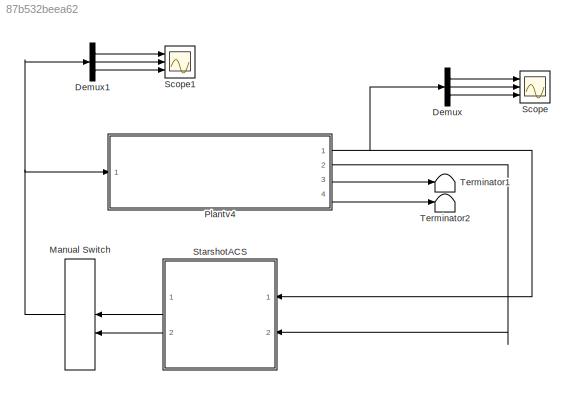
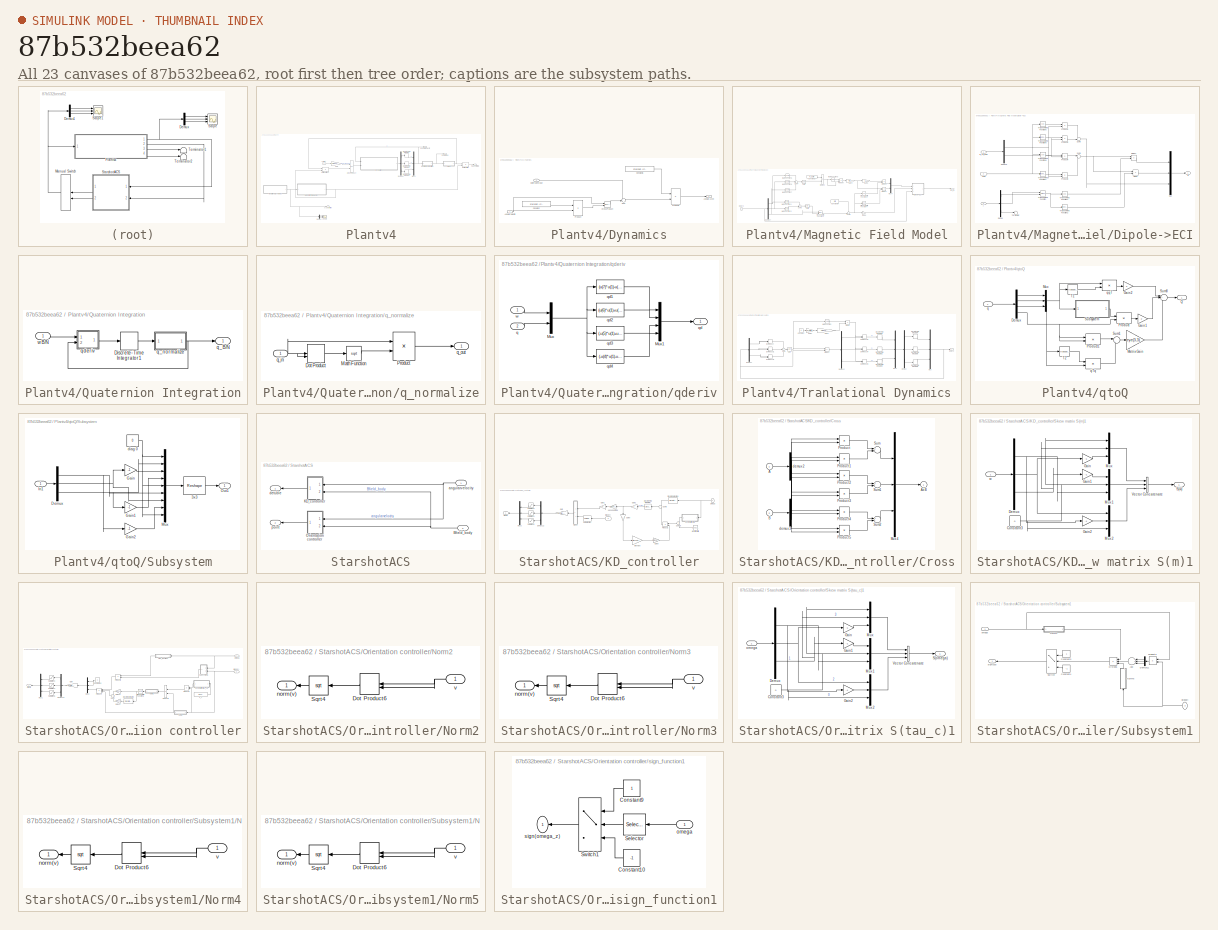
[diagram: thumbnail index - all 23 canvases of the model, root first then tree order]
MODEL slx_87b532beea62
KIND model
CONFIG AbsTol = auto
CONFIG EnableMultiTasking = off
CONFIG FixedStep = auto
CONFIG MaxStep = 4.0
CONFIG MinStep = .001
CONFIG RelTol = 1e-6
CONFIG SampleTimeConstraint = Unconstrained
CONFIG Solver = ode45
CONFIG SolverName = ode45
CONFIG StartTime = 0.0
CONFIG StopTime = 10000
BLOCK [Demux] Demux
  DisplayOption = bar
  Outputs = 3
  Ports = [1, 3]
BLOCK [Demux] Demux1
  DisplayOption = bar
  Outputs = 3
  Ports = [1, 3]
BLOCK [ManualSwitch] Manual Switch
BLOCK [SubSystem] Plantv4
  Ports = [1, 4]
  RequestExecContextInheritance = off
  TreatAsAtomicUnit = on
  Variant = off
BLOCK [Reference] Plantv4/Cross Product  REF=vrlib/Utilities/Cross Product
  Ports = [2, 1]
  SourceBlock = vrlib/Utilities/Cross Product
  SourceProductBaseCode = VR
  SourceProductName = Simulink 3D Animation
  SourceType = Cross Product
BLOCK [Demux] Plantv4/Demux
  DisplayOption = bar
  Outputs = 3
  Ports = [1, 3]
BLOCK [Demux] Plantv4/Demux4
  DisplayOption = bar
  Outputs = 3
  Ports = [1, 3]
BLOCK [DiscreteIntegrator] Plantv4/Discrete-Time Integrator
  ICPrevOutput = DiscIntNeverNeededParam
  ICPrevScaledInput = DiscIntNeverNeededParam
  InitialCondition = starshot.IC.w(1)
  InitialConditionSetting = State (most efficient)
  Ports = [1, 1]
  SampleTime = -1
BLOCK [DiscreteIntegrator] Plantv4/Discrete-Time Integrator1
  ICPrevOutput = DiscIntNeverNeededParam
  ICPrevScaledInput = DiscIntNeverNeededParam
  InitialCondition = starshot.IC.w(2)
  InitialConditionSetting = State (most efficient)
  Ports = [1, 1]
  SampleTime = -1
BLOCK [DiscreteIntegrator] Plantv4/Discrete-Time Integrator2
  ICPrevOutput = DiscIntNeverNeededParam
  ICPrevScaledInput = DiscIntNeverNeededParam
  InitialCondition = starshot.IC.w(3)
  InitialConditionSetting = State (most efficient)
  Ports = [1, 1]
  SampleTime = -1
BLOCK [SubSystem] Plantv4/Dynamics
  Ports = [2, 1]
  RequestExecContextInheritance = off
  TreatAsAtomicUnit = on
  Variant = off
BLOCK [Outport] Plantv4/Dynamics/Angular Accel
  IconDisplay = Port number
BLOCK [Inport] Plantv4/Dynamics/Angular Velocity
  IconDisplay = Port number
BLOCK [Constant] Plantv4/Dynamics/Constant
  Value = starshot.IC.massproperties.I
BLOCK [Constant] Plantv4/Dynamics/Constant1
  Value = starshot.IC.massproperties.Iinv
BLOCK [Reference] Plantv4/Dynamics/Cross Product  REF=vrlib/Utilities/Cross Product
  Ports = [2, 1]
  SourceBlock = vrlib/Utilities/Cross Product
  SourceProductBaseCode = VR
  SourceProductName = Simulink 3D Animation
  SourceType = Cross Product
BLOCK [Inport] Plantv4/Dynamics/External Torque
  IconDisplay = Port number
  Port = 2
BLOCK [Product] Plantv4/Dynamics/Product
  InputSameDT = off
  Multiplication = Matrix(*)
  OutDataTypeStr = Inherit: Inherit via internal rule
  Ports = [2, 1]
  RndMeth = Floor
  SaturateOnIntegerOverflow = off
BLOCK [Product] Plantv4/Dynamics/Product1
  InputSameDT = off
  Multiplication = Matrix(*)
  OutDataTypeStr = Inherit: Inherit via internal rule
  Ports = [2, 1]
  RndMeth = Floor
  SaturateOnIntegerOverflow = off
BLOCK [Sum] Plantv4/Dynamics/Sum
  IconShape = round
  InputSameDT = off
  Inputs = +-
  OutDataTypeStr = Inherit: Inherit via internal rule
  Ports = [2, 1]
  SaturateOnIntegerOverflow = off
BLOCK [Gain] Plantv4/Gain
  Gain = starshot.magnetorq.A*starshot.magnetorq.n
  OutDataTypeStr = Inherit: Inherit via internal rule
  ParamDataTypeStr = Inherit: Inherit via internal rule
  SaturateOnIntegerOverflow = off
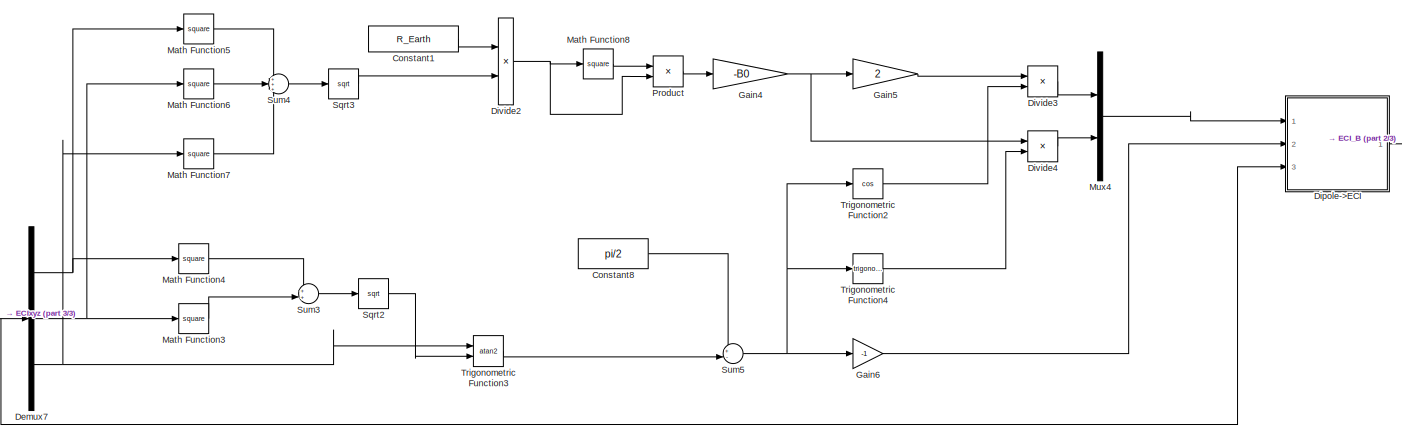
[diagram: Plantv4/Magnetic Field Model - part 1/3, most of the canvas]
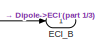
[diagram: Plantv4/Magnetic Field Model - part 2/3, middle right region]
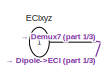
[diagram: Plantv4/Magnetic Field Model - part 3/3, bottom left region]
BLOCK [SubSystem] Plantv4/Magnetic Field Model
  Ports = [1, 1]
  RequestExecContextInheritance = off
  TreatAsAtomicUnit = on
  Variant = off
BLOCK [Constant] Plantv4/Magnetic Field Model/Constant1
  Value = R_Earth
BLOCK [Constant] Plantv4/Magnetic Field Model/Constant8
  Value = pi/2
BLOCK [Demux] Plantv4/Magnetic Field Model/Demux7
  DisplayOption = bar
  Outputs = 3
  Ports = [1, 3]
BLOCK [SubSystem] Plantv4/Magnetic Field Model/Dipole->ECI
  Ports = [3, 1]
  RequestExecContextInheritance = off
  TreatAsAtomicUnit = on
  Variant = off
BLOCK [Inport] Plantv4/Magnetic Field Model/Dipole->ECI/-theta
  IconDisplay = Port number
  Port = 2
BLOCK [Outport] Plantv4/Magnetic Field Model/Dipole->ECI/B
  IconDisplay = Port number
BLOCK [Inport] Plantv4/Magnetic Field Model/Dipole->ECI/B_r,B_theta
  IconDisplay = Port number
BLOCK [Demux] Plantv4/Magnetic Field Model/Dipole->ECI/Demux
  DisplayOption = bar
  Outputs = 3
  Ports = [1, 3]
BLOCK [Demux] Plantv4/Magnetic Field Model/Dipole->ECI/Demux8
  DisplayOption = bar
  Outputs = 2
  Ports = [1, 2]
BLOCK [Product] Plantv4/Magnetic Field Model/Dipole->ECI/Divide
  InputSameDT = off
  Inputs = **
  OutDataTypeStr = Inherit: Inherit via internal rule
  Ports = [2, 1]
  RndMeth = Floor
  SaturateOnIntegerOverflow = off
BLOCK [Product] Plantv4/Magnetic Field Model/Dipole->ECI/Divide1
  InputSameDT = off
  Inputs = **
  OutDataTypeStr = Inherit: Inherit via internal rule
  Ports = [2, 1]
  RndMeth = Floor
  SaturateOnIntegerOverflow = off
BLOCK [Mux] Plantv4/Magnetic Field Model/Dipole->ECI/Mux
  DisplayOption = bar
  Inputs = 3
  Ports = [3, 1]
BLOCK [Product] Plantv4/Magnetic Field Model/Dipole->ECI/Product1
  InputSameDT = off
  OutDataTypeStr = Inherit: Inherit via internal rule
  Ports = [2, 1]
  RndMeth = Floor
  SaturateOnIntegerOverflow = off
BLOCK [Product] Plantv4/Magnetic Field Model/Dipole->ECI/Product2
  InputSameDT = off
  OutDataTypeStr = Inherit: Inherit via internal rule
  Ports = [2, 1]
  RndMeth = Floor
  SaturateOnIntegerOverflow = off
BLOCK [Product] Plantv4/Magnetic Field Model/Dipole->ECI/Product3
  InputSameDT = off
  OutDataTypeStr = Inherit: Inherit via internal rule
  Ports = [2, 1]
  RndMeth = Floor
  SaturateOnIntegerOverflow = off
BLOCK [Product] Plantv4/Magnetic Field Model/Dipole->ECI/Product4
  InputSameDT = off
  OutDataTypeStr = Inherit: Inherit via internal rule
  Ports = [2, 1]
  RndMeth = Floor
  SaturateOnIntegerOverflow = off
BLOCK [Sum] Plantv4/Magnetic Field Model/Dipole->ECI/Sum5
  IconShape = round
  InputSameDT = off
  Inputs = +-|
  OutDataTypeStr = Inherit: Inherit via internal rule
  Ports = [2, 1]
  SaturateOnIntegerOverflow = off
BLOCK [Sum] Plantv4/Magnetic Field Model/Dipole->ECI/Sum6
  IconShape = round
  InputSameDT = off
  Inputs = |++
  OutDataTypeStr = Inherit: Inherit via internal rule
  Ports = [2, 1]
  SaturateOnIntegerOverflow = off
BLOCK [Terminator] Plantv4/Magnetic Field Model/Dipole->ECI/Terminator
BLOCK [Trigonometry] Plantv4/Magnetic Field Model/Dipole->ECI/Trigonometric Function
  Operator = atan2
  Ports = [2, 1]
BLOCK [Trigonometry] Plantv4/Magnetic Field Model/Dipole->ECI/Trigonometric Function1
  Operator = cos
  Ports = [1, 1]
BLOCK [Trigonometry] Plantv4/Magnetic Field Model/Dipole->ECI/Trigonometric Function2
  Ports = [1, 1]
BLOCK [Trigonometry] Plantv4/Magnetic Field Model/Dipole->ECI/Trigonometric Function5
  Operator = cos
  Ports = [1, 1]
BLOCK [Trigonometry] Plantv4/Magnetic Field Model/Dipole->ECI/Trigonometric Function6
  Ports = [1, 1]
BLOCK [Trigonometry] Plantv4/Magnetic Field Model/Dipole->ECI/Trigonometric Function7
  Ports = [1, 1]
BLOCK [Trigonometry] Plantv4/Magnetic Field Model/Dipole->ECI/Trigonometric Function8
  Operator = cos
  Ports = [1, 1]
BLOCK [Inport] Plantv4/Magnetic Field Model/Dipole->ECI/r
  IconDisplay = Port number
  Port = 3
BLOCK [Product] Plantv4/Magnetic Field Model/Divide2
  InputSameDT = off
  Inputs = */
  OutDataTypeStr = Inherit: Inherit via internal rule
  Ports = [2, 1]
  RndMeth = Floor
  SaturateOnIntegerOverflow = off
BLOCK [Product] Plantv4/Magnetic Field Model/Divide3
  InputSameDT = off
  Inputs = **
  OutDataTypeStr = Inherit: Inherit via internal rule
  Ports = [2, 1]
  RndMeth = Floor
  SaturateOnIntegerOverflow = off
BLOCK [Product] Plantv4/Magnetic Field Model/Divide4
  InputSameDT = off
  Inputs = **
  OutDataTypeStr = Inherit: Inherit via internal rule
  Ports = [2, 1]
  RndMeth = Floor
  SaturateOnIntegerOverflow = off
BLOCK [Outport] Plantv4/Magnetic Field Model/ECI_B
  IconDisplay = Port number
BLOCK [Inport] Plantv4/Magnetic Field Model/ECIxyz
  IconDisplay = Port number
BLOCK [Gain] Plantv4/Magnetic Field Model/Gain4
  Gain = -B0
  OutDataTypeStr = Inherit: Inherit via internal rule
  ParamDataTypeStr = Inherit: Inherit via internal rule
  SaturateOnIntegerOverflow = off
BLOCK [Gain] Plantv4/Magnetic Field Model/Gain5
  Gain = 2
  OutDataTypeStr = Inherit: Inherit via internal rule
  ParamDataTypeStr = Inherit: Inherit via internal rule
  SaturateOnIntegerOverflow = off
BLOCK [Gain] Plantv4/Magnetic Field Model/Gain6
  Gain = -1
  OutDataTypeStr = Inherit: Inherit via internal rule
  ParamDataTypeStr = Inherit: Inherit via internal rule
  SaturateOnIntegerOverflow = off
BLOCK [Math] Plantv4/Magnetic Field Model/Math Function3
  Operator = square
  Ports = [1, 1]
BLOCK [Math] Plantv4/Magnetic Field Model/Math Function4
  Operator = square
  Ports = [1, 1]
BLOCK [Math] Plantv4/Magnetic Field Model/Math Function5
  Operator = square
  Ports = [1, 1]
BLOCK [Math] Plantv4/Magnetic Field Model/Math Function6
  Operator = square
  Ports = [1, 1]
BLOCK [Math] Plantv4/Magnetic Field Model/Math Function7
  Operator = square
  Ports = [1, 1]
BLOCK [Math] Plantv4/Magnetic Field Model/Math Function8
  Operator = square
  Ports = [1, 1]
BLOCK [Mux] Plantv4/Magnetic Field Model/Mux4
  DisplayOption = bar
  Inputs = 2
  Ports = [2, 1]
BLOCK [Product] Plantv4/Magnetic Field Model/Product
  InputSameDT = off
  OutDataTypeStr = Inherit: Inherit via internal rule
  Ports = [2, 1]
  RndMeth = Floor
  SaturateOnIntegerOverflow = off
BLOCK [Sqrt] Plantv4/Magnetic Field Model/Sqrt2
BLOCK [Sqrt] Plantv4/Magnetic Field Model/Sqrt3
BLOCK [Sum] Plantv4/Magnetic Field Model/Sum3
  IconShape = round
  InputSameDT = off
  OutDataTypeStr = Inherit: Inherit via internal rule
  Ports = [2, 1]
  SaturateOnIntegerOverflow = off
BLOCK [Sum] Plantv4/Magnetic Field Model/Sum4
  IconShape = round
  InputSameDT = off
  Inputs = +++
  OutDataTypeStr = Inherit: Inherit via internal rule
  Ports = [3, 1]
  SaturateOnIntegerOverflow = off
BLOCK [Sum] Plantv4/Magnetic Field Model/Sum5
  IconShape = round
  InputSameDT = off
  Inputs = +-|
  OutDataTypeStr = Inherit: Inherit via internal rule
  Ports = [2, 1]
  SaturateOnIntegerOverflow = off
BLOCK [Trigonometry] Plantv4/Magnetic Field Model/Trigonometric Function2
  Operator = cos
  Ports = [1, 1]
BLOCK [Trigonometry] Plantv4/Magnetic Field Model/Trigonometric Function3
  Operator = atan2
  Ports = [2, 1]
BLOCK [Trigonometry] Plantv4/Magnetic Field Model/Trigonometric Function4
  Ports = [1, 1]
BLOCK [Product] Plantv4/Matrix Multiply
  InputSameDT = off
  Multiplication = Matrix(*)
  OutDataTypeStr = Inherit: Inherit via internal rule
  Ports = [2, 1]
  RndMeth = Floor
  SaturateOnIntegerOverflow = off
BLOCK [Product] Plantv4/Matrix Multiply1
  InputSameDT = off
  Multiplication = Matrix(*)
  OutDataTypeStr = Inherit: Inherit via internal rule
  Ports = [2, 1]
  RndMeth = Floor
  SaturateOnIntegerOverflow = off
BLOCK [Mux] Plantv4/Mux3
  DisplayOption = bar
  Inputs = 3
  Ports = [3, 1]
BLOCK [SubSystem] Plantv4/Quaternion Integration
  Ports = [1, 1]
  RequestExecContextInheritance = off
  Variant = off
BLOCK [DiscreteIntegrator] Plantv4/Quaternion Integration/Discrete-Time Integrator1
  ICPrevOutput = DiscIntNeverNeededParam
  ICPrevScaledInput = DiscIntNeverNeededParam
  InitialCondition = q0
  InitialConditionSetting = State (most efficient)
  Ports = [1, 1]
  SampleTime = -1
BLOCK [Outport] Plantv4/Quaternion Integration/q_B//N
  IconDisplay = Port number
BLOCK [SubSystem] Plantv4/Quaternion Integration/q_normalize
  Ports = [1, 1]
  RequestExecContextInheritance = off
  Variant = off
BLOCK [DotProduct] Plantv4/Quaternion Integration/q_normalize/Dot Product
  OutDataTypeStr = Inherit: Inherit via internal rule
BLOCK [Math] Plantv4/Quaternion Integration/q_normalize/Math Function
  Operator = sqrt
  Ports = [1, 1]
BLOCK [Product] Plantv4/Quaternion Integration/q_normalize/Product
  Inputs = */
  Ports = [2, 1]
  RndMeth = Floor
BLOCK [Inport] Plantv4/Quaternion Integration/q_normalize/q_in
  IconDisplay = Port number
  PortDimensions = 4
BLOCK [Outport] Plantv4/Quaternion Integration/q_normalize/q_out
  IconDisplay = Port number
BLOCK [SubSystem] Plantv4/Quaternion Integration/qderiv
  Ports = [2, 1]
  RequestExecContextInheritance = off
  Variant = off
BLOCK [Mux] Plantv4/Quaternion Integration/qderiv/Mux
  DisplayOption = bar
  Inputs = 2
  Ports = [2, 1]
BLOCK [Mux] Plantv4/Quaternion Integration/qderiv/Mux1
  DisplayOption = bar
  Ports = [4, 1]
BLOCK [Inport] Plantv4/Quaternion Integration/qderiv/q
  IconDisplay = Port number
  Port = 2
BLOCK [Outport] Plantv4/Quaternion Integration/qderiv/qd
  IconDisplay = Port number
BLOCK [Fcn] Plantv4/Quaternion Integration/qderiv/qd1
  Expr = (u(7)*u(1)-u(6)*u(2)+u(5)*u(3))/2
BLOCK [Fcn] Plantv4/Quaternion Integration/qderiv/qd2
  Expr = (u(6)*u(1)+u(7)*u(2)-u(4)*u(3))/2
BLOCK [Fcn] Plantv4/Quaternion Integration/qderiv/qd3
  Expr = (-u(5)*u(1)+u(4)*u(2)+u(7)*u(3))/2
BLOCK [Fcn] Plantv4/Quaternion Integration/qderiv/qd4
  Expr = (-u(4)*u(1)-u(5)*u(2)-u(6)*u(3))/2
BLOCK [Inport] Plantv4/Quaternion Integration/qderiv/w
  IconDisplay = Port number
BLOCK [Inport] Plantv4/Quaternion Integration/w B//N
  IconDisplay = Port number
BLOCK [Scope] Plantv4/Scope
  NumInputPorts = 3
  Ports = [3]
  ScopeSpecificationString = Simulink.scopes.TimeScopeBlockCfg('CurrentConfiguration', extmgr.ConfigurationSet(extmgr.Configuration('Core','General UI',true),extmgr.Configuration('Core','Source UI',true),extmgr.Configuration('Sources','WiredSimulink',true,'DataLoggingVariableName','ScopeData1'),extmgr.Configuration('Visuals','Time Domain',true,'SerializedDisplays',{struct('MinYLimReal','6403135.10671','MaxYLimReal','12371784....<+2772ch>
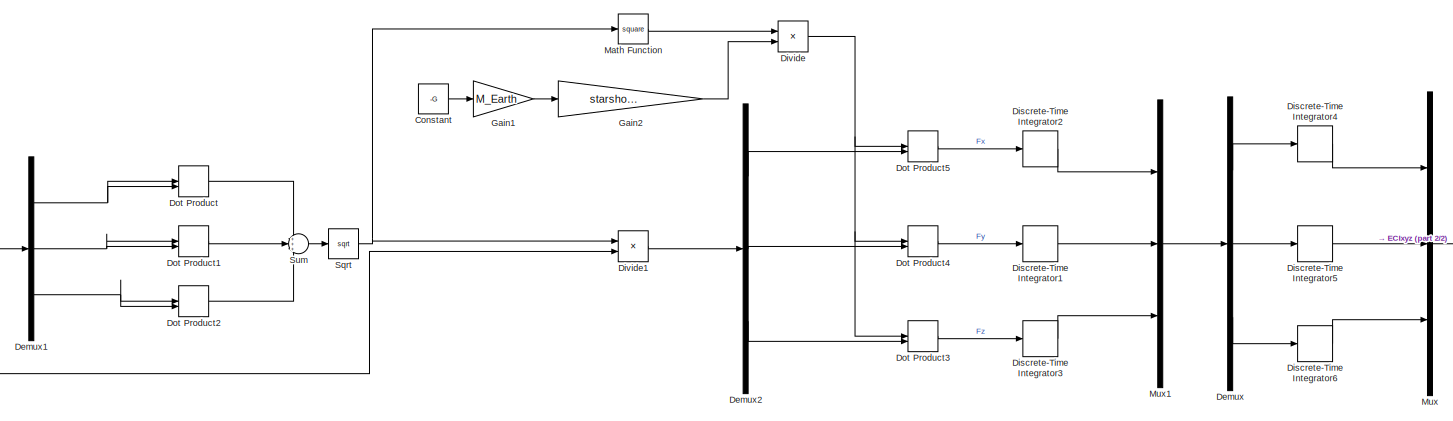
[diagram: Plantv4/Tranlational Dynamics - part 1/2, most of the canvas]
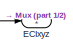
[diagram: Plantv4/Tranlational Dynamics - part 2/2, middle right region]
BLOCK [SubSystem] Plantv4/Tranlational Dynamics
  Ports = [0, 1]
  RequestExecContextInheritance = off
  TreatAsAtomicUnit = on
  Variant = off
BLOCK [Constant] Plantv4/Tranlational Dynamics/Constant
  Value = -G
BLOCK [Demux] Plantv4/Tranlational Dynamics/Demux
  DisplayOption = bar
  Outputs = 3
  Ports = [1, 3]
BLOCK [Demux] Plantv4/Tranlational Dynamics/Demux1
  DisplayOption = bar
  Outputs = 3
  Ports = [1, 3]
BLOCK [Demux] Plantv4/Tranlational Dynamics/Demux2
  DisplayOption = bar
  Outputs = 3
  Ports = [1, 3]
BLOCK [DiscreteIntegrator] Plantv4/Tranlational Dynamics/Discrete-Time Integrator1
  ICPrevOutput = DiscIntNeverNeededParam
  ICPrevScaledInput = DiscIntNeverNeededParam
  InitialCondition = starshot.IC.ydot
  InitialConditionSetting = State (most efficient)
  Ports = [1, 1]
  SampleTime = -1
BLOCK [DiscreteIntegrator] Plantv4/Tranlational Dynamics/Discrete-Time Integrator2
  ICPrevOutput = DiscIntNeverNeededParam
  ICPrevScaledInput = DiscIntNeverNeededParam
  InitialCondition = starshot.IC.xdot
  InitialConditionSetting = State (most efficient)
  Ports = [1, 1]
  SampleTime = -1
BLOCK [DiscreteIntegrator] Plantv4/Tranlational Dynamics/Discrete-Time Integrator3
  ICPrevOutput = DiscIntNeverNeededParam
  ICPrevScaledInput = DiscIntNeverNeededParam
  InitialCondition = starshot.IC.zdot
  InitialConditionSetting = State (most efficient)
  Ports = [1, 1]
  SampleTime = -1
BLOCK [DiscreteIntegrator] Plantv4/Tranlational Dynamics/Discrete-Time Integrator4
  ICPrevOutput = DiscIntNeverNeededParam
  ICPrevScaledInput = DiscIntNeverNeededParam
  InitialCondition = starshot.IC.x
  InitialConditionSetting = State (most efficient)
  Ports = [1, 1]
  SampleTime = -1
BLOCK [DiscreteIntegrator] Plantv4/Tranlational Dynamics/Discrete-Time Integrator5
  ICPrevOutput = DiscIntNeverNeededParam
  ICPrevScaledInput = DiscIntNeverNeededParam
  InitialCondition = starshot.IC.y
  InitialConditionSetting = State (most efficient)
  Ports = [1, 1]
  SampleTime = -1
BLOCK [DiscreteIntegrator] Plantv4/Tranlational Dynamics/Discrete-Time Integrator6
  ICPrevOutput = DiscIntNeverNeededParam
  ICPrevScaledInput = DiscIntNeverNeededParam
  InitialCondition = starshot.IC.z
  InitialConditionSetting = State (most efficient)
  Ports = [1, 1]
  SampleTime = -1
BLOCK [Product] Plantv4/Tranlational Dynamics/Divide
  InputSameDT = off
  Inputs = /*
  OutDataTypeStr = Inherit: Inherit via internal rule
  Ports = [2, 1]
  RndMeth = Floor
  SaturateOnIntegerOverflow = off
BLOCK [Product] Plantv4/Tranlational Dynamics/Divide1
  InputSameDT = off
  Inputs = /*
  OutDataTypeStr = Inherit: Inherit via internal rule
  Ports = [2, 1]
  RndMeth = Floor
  SaturateOnIntegerOverflow = off
BLOCK [DotProduct] Plantv4/Tranlational Dynamics/Dot Product
  OutDataTypeStr = Inherit: Inherit via internal rule
BLOCK [DotProduct] Plantv4/Tranlational Dynamics/Dot Product1
  OutDataTypeStr = Inherit: Inherit via internal rule
BLOCK [DotProduct] Plantv4/Tranlational Dynamics/Dot Product2
  OutDataTypeStr = Inherit: Inherit via internal rule
BLOCK [DotProduct] Plantv4/Tranlational Dynamics/Dot Product3
  OutDataTypeStr = Inherit: Inherit via internal rule
BLOCK [DotProduct] Plantv4/Tranlational Dynamics/Dot Product4
  OutDataTypeStr = Inherit: Inherit via internal rule
BLOCK [DotProduct] Plantv4/Tranlational Dynamics/Dot Product5
  OutDataTypeStr = Inherit: Inherit via internal rule
BLOCK [Outport] Plantv4/Tranlational Dynamics/ECIxyz
  IconDisplay = Port number
BLOCK [Gain] Plantv4/Tranlational Dynamics/Gain1
  Gain = M_Earth
  OutDataTypeStr = Inherit: Inherit via internal rule
  ParamDataTypeStr = Inherit: Inherit via internal rule
  SaturateOnIntegerOverflow = off
BLOCK [Gain] Plantv4/Tranlational Dynamics/Gain2
  Gain = starshot.IC.massproperties.m
  OutDataTypeStr = Inherit: Inherit via internal rule
  ParamDataTypeStr = Inherit: Inherit via internal rule
  SaturateOnIntegerOverflow = off
BLOCK [Math] Plantv4/Tranlational Dynamics/Math Function
  Operator = square
  Ports = [1, 1]
BLOCK [Mux] Plantv4/Tranlational Dynamics/Mux
  DisplayOption = bar
  Inputs = 3
  Ports = [3, 1]
BLOCK [Mux] Plantv4/Tranlational Dynamics/Mux1
  DisplayOption = bar
  Inputs = 3
  Ports = [3, 1]
BLOCK [Sqrt] Plantv4/Tranlational Dynamics/Sqrt
BLOCK [Sum] Plantv4/Tranlational Dynamics/Sum
  IconShape = round
  InputSameDT = off
  Inputs = +++
  OutDataTypeStr = Inherit: Inherit via internal rule
  Ports = [3, 1]
  SaturateOnIntegerOverflow = off
BLOCK [Outport] Plantv4/angular velocity
  IconDisplay = Port number
BLOCK [Inport] Plantv4/current
  IconDisplay = Port number
BLOCK [Outport] Plantv4/magnetic field
  IconDisplay = Port number
  Port = 2
BLOCK [SubSystem] Plantv4/qtoQ
  Ports = [1, 1]
  RequestExecContextInheritance = off
  TreatAsAtomicUnit = on
  Variant = off
BLOCK [Demux] Plantv4/qtoQ/Demux
  Ports = [1, 4]
BLOCK [Gain] Plantv4/qtoQ/Gain1
  Gain = 2
BLOCK [Gain] Plantv4/qtoQ/Gain2
  Gain = 2
BLOCK [Gain] Plantv4/qtoQ/Matrix Gain
  Gain = eye(3,3)
BLOCK [Mux] Plantv4/qtoQ/Mux
  DisplayOption = bar
  Inputs = 3
  Ports = [3, 1]
BLOCK [Product] Plantv4/qtoQ/Product
  Ports = [2, 1]
  RndMeth = Floor
BLOCK [Product] Plantv4/qtoQ/Product1
  Ports = [2, 1]
  RndMeth = Floor
BLOCK [Outport] Plantv4/qtoQ/Q
  IconDisplay = Port number
BLOCK [SubSystem] Plantv4/qtoQ/Subsystem
  Ports = [1, 1]
  RequestExecContextInheritance = off
  Variant = off
BLOCK [Reshape] Plantv4/qtoQ/Subsystem/3x3
  OutputDimensionality = Customize
  OutputDimensions = [3,3]
  Ports = [1, 1]
BLOCK [Demux] Plantv4/qtoQ/Subsystem/Demux
  Outputs = 3
  Ports = [1, 3]
BLOCK [Gain] Plantv4/qtoQ/Subsystem/Gain
  Gain = -1
BLOCK [Gain] Plantv4/qtoQ/Subsystem/Gain1
  Gain = -1
BLOCK [Gain] Plantv4/qtoQ/Subsystem/Gain2
  Gain = -1
BLOCK [Inport] Plantv4/qtoQ/Subsystem/In1
  IconDisplay = Port number
BLOCK [Mux] Plantv4/qtoQ/Subsystem/Mux
  DisplayOption = bar
  Inputs = 9
  Ports = [9, 1]
BLOCK [Outport] Plantv4/qtoQ/Subsystem/Out1
  IconDisplay = Port number
BLOCK [Constant] Plantv4/qtoQ/Subsystem/diag 0 
  Value = 0
BLOCK [Sum] Plantv4/qtoQ/Sum1
  IconShape = round
  Inputs = |+-
  Ports = [2, 1]
BLOCK [Sum] Plantv4/qtoQ/Sum8
  IconShape = round
  Inputs = |+-+
  Ports = [3, 1]
BLOCK [Math] Plantv4/qtoQ/T1
  Operator = transpose
  Ports = [1, 1]
BLOCK [Math] Plantv4/qtoQ/T2
  Operator = transpose
  Ports = [1, 1]
BLOCK [Inport] Plantv4/qtoQ/q
  IconDisplay = Port number
BLOCK [Product] Plantv4/qtoQ/qTq
  Multiplication = Matrix(*)
  Ports = [2, 1]
  RndMeth = Floor
BLOCK [Product] Plantv4/qtoQ/qqT
  Multiplication = Matrix(*)
  Ports = [2, 1]
  RndMeth = Floor
BLOCK [Outport] Plantv4/quaternion
  IconDisplay = Port number
  Port = 4
BLOCK [Outport] Plantv4/xyzposition
  IconDisplay = Port number
  Port = 3
BLOCK [Scope] Scope
  NumInputPorts = 3
  Ports = [3]
  ScopeSpecificationString = Simulink.scopes.TimeScopeBlockCfg('CurrentConfiguration', extmgr.ConfigurationSet(extmgr.Configuration('Core','General UI',true),extmgr.Configuration('Core','Source UI',true),extmgr.Configuration('Sources','WiredSimulink',true,'DataLoggingVariableName','ScopeData1'),extmgr.Configuration('Visuals','Time Domain',true,'SerializedDisplays',{struct('MinYLimReal','-0.41169','MaxYLimReal','0.63864','YLab...<+2746ch>
BLOCK [Scope] Scope1
  NumInputPorts = 3
  Ports = [3]
  ScopeSpecificationString = Simulink.scopes.TimeScopeBlockCfg('CurrentConfiguration', extmgr.ConfigurationSet(extmgr.Configuration('Core','General UI',true),extmgr.Configuration('Core','Source UI',true),extmgr.Configuration('Sources','WiredSimulink',true,'DataLoggingVariableName','ScopeData2'),extmgr.Configuration('Visuals','Time Domain',true,'SerializedDisplays',{struct('MinYLimReal','-0.00063','MaxYLimReal','0.00063','YLab...<+2723ch>
BLOCK [SubSystem] StarshotACS
  Ports = [2, 2]
  RequestExecContextInheritance = off
  TreatAsAtomicUnit = on
  Variant = off
BLOCK [Inport] StarshotACS/Bfield_body
  IconDisplay = Port number
  Port = 2
BLOCK [SubSystem] StarshotACS/KD_controller
  Ports = [2, 1]
  RequestExecContextInheritance = off
  Variant = off
BLOCK [Inport] StarshotACS/KD_controller/B(body)
  IconDisplay = Port number
  Port = 2
BLOCK [SubSystem] StarshotACS/KD_controller/Cross
  Ports = [2, 1]
  RequestExecContextInheritance = off
  Variant = off
BLOCK [Inport] StarshotACS/KD_controller/Cross/A
  IconDisplay = Port number
BLOCK [Outport] StarshotACS/KD_controller/Cross/AxB
  IconDisplay = Port number
  InitialOutput = 0
BLOCK [Inport] StarshotACS/KD_controller/Cross/B
  IconDisplay = Port number
  Port = 2
BLOCK [Mux] StarshotACS/KD_controller/Cross/Mux4
  Inputs = 3
  Ports = [3, 1]
BLOCK [Product] StarshotACS/KD_controller/Cross/Product
  Ports = [2, 1]
  RndMeth = Floor
BLOCK [Product] StarshotACS/KD_controller/Cross/Product1
  Ports = [2, 1]
  RndMeth = Floor
BLOCK [Product] StarshotACS/KD_controller/Cross/Product2
  Ports = [2, 1]
  RndMeth = Floor
BLOCK [Product] StarshotACS/KD_controller/Cross/Product3
  Ports = [2, 1]
  RndMeth = Floor
BLOCK [Product] StarshotACS/KD_controller/Cross/Product4
  Ports = [2, 1]
  RndMeth = Floor
BLOCK [Product] StarshotACS/KD_controller/Cross/Product5
  Ports = [2, 1]
  RndMeth = Floor
BLOCK [Sum] StarshotACS/KD_controller/Cross/Sum
  Inputs = +-
  Ports = [2, 1]
BLOCK [Sum] StarshotACS/KD_controller/Cross/Sum1
  Inputs = +-
  Ports = [2, 1]
BLOCK [Sum] StarshotACS/KD_controller/Cross/Sum2
  Inputs = +-
  Ports = [2, 1]
BLOCK [Demux] StarshotACS/KD_controller/Cross/demux2
  Outputs = 3
  Ports = [1, 3]
BLOCK [Demux] StarshotACS/KD_controller/Cross/demux3
  Outputs = 3
  Ports = [1, 3]
BLOCK [Demux] StarshotACS/KD_controller/Demux12
  DisplayOption = bar
  Outputs = 3
  Ports = [1, 3]
BLOCK [Outport] StarshotACS/KD_controller/Dipole
  IconDisplay = Port number
BLOCK [Reference] StarshotACS/KD_controller/Discrete Derivative  REF=simulink/Discrete/Discrete Derivative
  Ports = [1, 1]
  SourceBlock = simulink/Discrete/Discrete Derivative
  SourceProductBaseCode = SL
  SourceProductName = Simulink
  SourceType = Discrete Derivative
BLOCK [DiscreteIntegrator] StarshotACS/KD_controller/Discrete-Time Integrator
  ICPrevOutput = DiscIntNeverNeededParam
  ICPrevScaledInput = DiscIntNeverNeededParam
  InitialCondition = starshot.cmd.wdb0
  InitialConditionSetting = State (most efficient)
  Ports = [1, 1]
  SampleTime = -1
BLOCK [Gain] StarshotACS/KD_controller/Gain
  Gain = 1/(starshot.magnetorq.A*starshot.magnetorq.n)
  OutDataTypeStr = Inherit: Inherit via internal rule
  ParamDataTypeStr = Inherit: Inherit via internal rule
  SaturateOnIntegerOverflow = off
BLOCK [Gain] StarshotACS/KD_controller/Gain 1
BLOCK [Gain] StarshotACS/KD_controller/Gain 2
  Gain = -1
BLOCK [Gain] StarshotACS/KD_controller/Gain 8
  Gain = starshot.cmd.c
BLOCK [Gain] StarshotACS/KD_controller/Gain 9
  Gain = -1
BLOCK [Gain] StarshotACS/KD_controller/Id inverse
  Gain = starshot.cmd.invId
  Multiplication = Matrix(K*u)
BLOCK [Constant] StarshotACS/KD_controller/Identity matrix
  Value = [1 0 0;0 1 0;0 0 1]
BLOCK [Gain] StarshotACS/KD_controller/Kane damping
  Gain = starshot.cmd.c
BLOCK [Mux] StarshotACS/KD_controller/Mux2
  DisplayOption = bar
  Inputs = 3
  Ports = [3, 1]
BLOCK [Reference] StarshotACS/KD_controller/Normalization  REF=dspmathops/Normalization
  Ports = [1, 1]
  SourceBlock = dspmathops/Normalization
  SourceProductBaseCode = DS
  SourceProductName = DSP System Toolbox
  SourceType = Normalization
BLOCK [Inport] StarshotACS/KD_controller/Omega
  IconDisplay = Port number
BLOCK [Product] StarshotACS/KD_controller/Product1
  InputSameDT = off
  Multiplication = Matrix(*)
  OutDataTypeStr = Inherit: Inherit via internal rule
  Ports = [2, 1]
  RndMeth = Floor
  SaturateOnIntegerOverflow = off
BLOCK [Saturate] StarshotACS/KD_controller/Saturation3
  InputPortMap = u0
  LowerLimit = -starshot.magnetorq.m_max_x/(starshot.magnetorq.A*starshot.magnetorq.n)
  Ports = [1, 1]
  UpperLimit = starshot.magnetorq.m_max_x/(starshot.magnetorq.A*starshot.magnetorq.n)
BLOCK [Saturate] StarshotACS/KD_controller/Saturation4
  InputPortMap = u0
  LowerLimit = -starshot.magnetorq.m_max_y/(starshot.magnetorq.A*starshot.magnetorq.n)
  Ports = [1, 1]
  UpperLimit = starshot.magnetorq.m_max_y/(starshot.magnetorq.A*starshot.magnetorq.n)
BLOCK [Saturate] StarshotACS/KD_controller/Saturation5
  InputPortMap = u0
  LowerLimit = -starshot.magnetorq.m_max_z/(starshot.magnetorq.A*starshot.magnetorq.n)
  Ports = [1, 1]
  UpperLimit = starshot.magnetorq.m_max_z/(starshot.magnetorq.A*starshot.magnetorq.n)
BLOCK [SubSystem] StarshotACS/KD_controller/Skew matrix S(m)1
  Ports = [1, 1]
  RequestExecContextInheritance = off
  Variant = off
BLOCK [Constant] StarshotACS/KD_controller/Skew matrix S(m)1/Constant3
  Value = 0
BLOCK [Demux] StarshotACS/KD_controller/Skew matrix S(m)1/Demux
  DisplayOption = bar
  Outputs = 3
  Ports = [1, 3]
BLOCK [Gain] StarshotACS/KD_controller/Skew matrix S(m)1/Gain
  Gain = -1
  OutDataTypeStr = Inherit: Inherit via internal rule
  ParamDataTypeStr = Inherit: Inherit via internal rule
  SaturateOnIntegerOverflow = off
BLOCK [Gain] StarshotACS/KD_controller/Skew matrix S(m)1/Gain1
  Gain = -1
  OutDataTypeStr = Inherit: Inherit via internal rule
  ParamDataTypeStr = Inherit: Inherit via internal rule
  SaturateOnIntegerOverflow = off
BLOCK [Gain] StarshotACS/KD_controller/Skew matrix S(m)1/Gain2
  Gain = -1
  OutDataTypeStr = Inherit: Inherit via internal rule
  ParamDataTypeStr = Inherit: Inherit via internal rule
  SaturateOnIntegerOverflow = off
BLOCK [Mux] StarshotACS/KD_controller/Skew matrix S(m)1/Mux
  DisplayOption = bar
  Inputs = 3
  Ports = [3, 1]
BLOCK [Mux] StarshotACS/KD_controller/Skew matrix S(m)1/Mux1
  DisplayOption = bar
  Inputs = 3
  Ports = [3, 1]
BLOCK [Mux] StarshotACS/KD_controller/Skew matrix S(m)1/Mux2
  DisplayOption = bar
  Inputs = 3
  Ports = [3, 1]
BLOCK [Outport] StarshotACS/KD_controller/Skew matrix S(m)1/S(w)
  IconDisplay = Port number
BLOCK [Concatenate] StarshotACS/KD_controller/Skew matrix S(m)1/Vector Concatenate
  ConcatenateDimension = 2
  Mode = Multidimensional array
  NumInputs = 3
  Ports = [3, 1]
BLOCK [Inport] StarshotACS/KD_controller/Skew matrix S(m)1/w
  IconDisplay = Port number
BLOCK [Sum] StarshotACS/KD_controller/Sum10
  IconShape = round
  Inputs = +|+
  Ports = [2, 1]
BLOCK [Sum] StarshotACS/KD_controller/Sum8
  IconShape = round
  InputSameDT = off
  Inputs = --
  OutDataTypeStr = Inherit: Inherit via internal rule
  Ports = [2, 1]
  SaturateOnIntegerOverflow = off
BLOCK [SubSystem] StarshotACS/Orientation controller
  Ports = [2, 1]
  RequestExecContextInheritance = off
  Variant = off
BLOCK [Inport] StarshotACS/Orientation controller/B(body)
  IconDisplay = Port number
  Port = 2
BLOCK [Constant] StarshotACS/Orientation controller/Constant12
  Value = 0
BLOCK [Demux] StarshotACS/Orientation controller/Demux12
  DisplayOption = bar
  Outputs = 3
  Ports = [1, 3]
BLOCK [Outport] StarshotACS/Orientation controller/Dipole
  IconDisplay = Port number
BLOCK [Reference] StarshotACS/Orientation controller/Discrete Derivative  REF=simulink/Discrete/Discrete Derivative
  Ports = [1, 1]
  SourceBlock = simulink/Discrete/Discrete Derivative
  SourceProductBaseCode = SL
  SourceProductName = Simulink
  SourceType = Discrete Derivative
BLOCK [Gain] StarshotACS/Orientation controller/Gain
  Gain = 1/(starshot.magnetorq.A*starshot.magnetorq.n)
  OutDataTypeStr = Inherit: Inherit via internal rule
  ParamDataTypeStr = Inherit: Inherit via internal rule
  SaturateOnIntegerOverflow = off
BLOCK [Gain] StarshotACS/Orientation controller/Gain10
  Gain = starshot.controller.Kp*starshot.IC.massproperties.Izp
  OutDataTypeStr = Inherit: Inherit via internal rule
  ParamDataTypeStr = Inherit: Inherit via internal rule
  SaturateOnIntegerOverflow = off
BLOCK [Gain] StarshotACS/Orientation controller/Gain11
  Gain = starshot.controller.Kd*starshot.IC.massproperties.Izp
  OutDataTypeStr = Inherit: Inherit via internal rule
  ParamDataTypeStr = Inherit: Inherit via internal rule
  SaturateOnIntegerOverflow = off
BLOCK [Mux] StarshotACS/Orientation controller/Mux1
  DisplayOption = bar
  Inputs = 3
  Ports = [3, 1]
BLOCK [Mux] StarshotACS/Orientation controller/Mux2
  DisplayOption = bar
  Inputs = 3
  Ports = [3, 1]
BLOCK [SubSystem] StarshotACS/Orientation controller/Norm2
  Ports = [1, 1]
  RequestExecContextInheritance = off
  Variant = off
BLOCK [DotProduct] StarshotACS/Orientation controller/Norm2/Dot Product6
  OutDataTypeStr = Inherit: Inherit via internal rule
BLOCK [Sqrt] StarshotACS/Orientation controller/Norm2/Sqrt4
BLOCK [Outport] StarshotACS/Orientation controller/Norm2/norm(v)
  IconDisplay = Port number
BLOCK [Inport] StarshotACS/Orientation controller/Norm2/v
  IconDisplay = Port number
BLOCK [SubSystem] StarshotACS/Orientation controller/Norm3
  Ports = [1, 1]
  RequestExecContextInheritance = off
  Variant = off
BLOCK [DotProduct] StarshotACS/Orientation controller/Norm3/Dot Product6
  OutDataTypeStr = Inherit: Inherit via internal rule
BLOCK [Sqrt] StarshotACS/Orientation controller/Norm3/Sqrt4
BLOCK [Outport] StarshotACS/Orientation controller/Norm3/norm(v)
  IconDisplay = Port number
BLOCK [Inport] StarshotACS/Orientation controller/Norm3/v
  IconDisplay = Port number
BLOCK [Inport] StarshotACS/Orientation controller/Omega
  IconDisplay = Port number
BLOCK [Product] StarshotACS/Orientation controller/Product4
  InputSameDT = off
  Multiplication = Matrix(*)
  OutDataTypeStr = Inherit: Inherit via internal rule
  Ports = [2, 1]
  RndMeth = Floor
  SaturateOnIntegerOverflow = off
BLOCK [Product] StarshotACS/Orientation controller/Product6
  InputSameDT = off
  Inputs = */
  OutDataTypeStr = Inherit: Inherit via internal rule
  Ports = [2, 1]
  RndMeth = Floor
  SaturateOnIntegerOverflow = off
BLOCK [Product] StarshotACS/Orientation controller/Product7
  InputSameDT = off
  Inputs = **/
  OutDataTypeStr = Inherit: Inherit via internal rule
  Ports = [3, 1]
  RndMeth = Floor
  SaturateOnIntegerOverflow = off
BLOCK [Product] StarshotACS/Orientation controller/Product8
  InputSameDT = off
  Inputs = **
  OutDataTypeStr = Inherit: Inherit via internal rule
  Ports = [2, 1]
  RndMeth = Floor
  SaturateOnIntegerOverflow = off
BLOCK [Saturate] StarshotACS/Orientation controller/Saturation3
  InputPortMap = u0
  LowerLimit = -starshot.magnetorq.m_max_x/(starshot.magnetorq.A*starshot.magnetorq.n)
  Ports = [1, 1]
  UpperLimit = starshot.magnetorq.m_max_x/(starshot.magnetorq.A*starshot.magnetorq.n)
BLOCK [Saturate] StarshotACS/Orientation controller/Saturation4
  InputPortMap = u0
  LowerLimit = -starshot.magnetorq.m_max_y/(starshot.magnetorq.A*starshot.magnetorq.n)
  Ports = [1, 1]
  UpperLimit = starshot.magnetorq.m_max_y/(starshot.magnetorq.A*starshot.magnetorq.n)
BLOCK [Saturate] StarshotACS/Orientation controller/Saturation5
  InputPortMap = u0
  LowerLimit = -starshot.magnetorq.m_max_z/(starshot.magnetorq.A*starshot.magnetorq.n)
  Ports = [1, 1]
  UpperLimit = starshot.magnetorq.m_max_z/(starshot.magnetorq.A*starshot.magnetorq.n)
BLOCK [SubSystem] StarshotACS/Orientation controller/Skew matrix S(tau_c)1
  Ports = [1, 1]
  RequestExecContextInheritance = off
  Variant = off
BLOCK [Constant] StarshotACS/Orientation controller/Skew matrix S(tau_c)1/Constant3
  Value = 0
BLOCK [Demux] StarshotACS/Orientation controller/Skew matrix S(tau_c)1/Demux
  DisplayOption = bar
  Outputs = 3
  Ports = [1, 3]
BLOCK [Gain] StarshotACS/Orientation controller/Skew matrix S(tau_c)1/Gain
  Gain = -1
  OutDataTypeStr = Inherit: Inherit via internal rule
  ParamDataTypeStr = Inherit: Inherit via internal rule
  SaturateOnIntegerOverflow = off
BLOCK [Gain] StarshotACS/Orientation controller/Skew matrix S(tau_c)1/Gain1
  Gain = -1
  OutDataTypeStr = Inherit: Inherit via internal rule
  ParamDataTypeStr = Inherit: Inherit via internal rule
  SaturateOnIntegerOverflow = off
BLOCK [Gain] StarshotACS/Orientation controller/Skew matrix S(tau_c)1/Gain2
  Gain = -1
  OutDataTypeStr = Inherit: Inherit via internal rule
  ParamDataTypeStr = Inherit: Inherit via internal rule
  SaturateOnIntegerOverflow = off
BLOCK [Mux] StarshotACS/Orientation controller/Skew matrix S(tau_c)1/Mux
  DisplayOption = bar
  Inputs = 3
  Ports = [3, 1]
BLOCK [Mux] StarshotACS/Orientation controller/Skew matrix S(tau_c)1/Mux1
  DisplayOption = bar
  Inputs = 3
  Ports = [3, 1]
BLOCK [Mux] StarshotACS/Orientation controller/Skew matrix S(tau_c)1/Mux2
  DisplayOption = bar
  Inputs = 3
  Ports = [3, 1]
BLOCK [Outport] StarshotACS/Orientation controller/Skew matrix S(tau_c)1/S(omega)
  IconDisplay = Port number
BLOCK [Concatenate] StarshotACS/Orientation controller/Skew matrix S(tau_c)1/Vector Concatenate
  ConcatenateDimension = 2
  Mode = Multidimensional array
  NumInputs = 3
  Ports = [3, 1]
BLOCK [Inport] StarshotACS/Orientation controller/Skew matrix S(tau_c)1/omega
  IconDisplay = Port number
BLOCK [SubSystem] StarshotACS/Orientation controller/Subsystem1
  Ports = [2, 1]
  RequestExecContextInheritance = off
  Variant = off
BLOCK [Sum] StarshotACS/Orientation controller/Subsystem1/Add
  InputSameDT = off
  Inputs = 3
  OutDataTypeStr = Inherit: Inherit via internal rule
  Ports = [3, 1]
  SaturateOnIntegerOverflow = off
BLOCK [Inport] StarshotACS/Orientation controller/Subsystem1/B(body)
  IconDisplay = Port number
  Port = 2
BLOCK [Constant] StarshotACS/Orientation controller/Subsystem1/Constant3
BLOCK [Constant] StarshotACS/Orientation controller/Subsystem1/Constant4
  Value = -1
BLOCK [Demux] StarshotACS/Orientation controller/Subsystem1/Demux11
  DisplayOption = bar
  Outputs = 3
  Ports = [1, 3]
BLOCK [Product] StarshotACS/Orientation controller/Subsystem1/Divide6
  InputSameDT = off
  Inputs = /*/
  OutDataTypeStr = Inherit: Inherit via internal rule
  Ports = [3, 1]
  RndMeth = Floor
  SaturateOnIntegerOverflow = off
BLOCK [SubSystem] StarshotACS/Orientation controller/Subsystem1/Norm4
  Ports = [1, 1]
  RequestExecContextInheritance = off
  Variant = off
BLOCK [DotProduct] StarshotACS/Orientation controller/Subsystem1/Norm4/Dot Product6
  OutDataTypeStr = Inherit: Inherit via internal rule
BLOCK [Sqrt] StarshotACS/Orientation controller/Subsystem1/Norm4/Sqrt4
BLOCK [Outport] StarshotACS/Orientation controller/Subsystem1/Norm4/norm(v)
  IconDisplay = Port number
BLOCK [Inport] StarshotACS/Orientation controller/Subsystem1/Norm4/v
  IconDisplay = Port number
BLOCK [SubSystem] StarshotACS/Orientation controller/Subsystem1/Norm5
  Ports = [1, 1]
  RequestExecContextInheritance = off
  Variant = off
BLOCK [DotProduct] StarshotACS/Orientation controller/Subsystem1/Norm5/Dot Product6
  OutDataTypeStr = Inherit: Inherit via internal rule
BLOCK [Sqrt] StarshotACS/Orientation controller/Subsystem1/Norm5/Sqrt4
BLOCK [Outport] StarshotACS/Orientation controller/Subsystem1/Norm5/norm(v)
  IconDisplay = Port number
BLOCK [Inport] StarshotACS/Orientation controller/Subsystem1/Norm5/v
  IconDisplay = Port number
BLOCK [Product] StarshotACS/Orientation controller/Subsystem1/Product3
  InputSameDT = off
  OutDataTypeStr = Inherit: Inherit via internal rule
  Ports = [2, 1]
  RndMeth = Floor
  SaturateOnIntegerOverflow = off
BLOCK [Switch] StarshotACS/Orientation controller/Subsystem1/Switch
  Criteria = u2 > Threshold
  InputSameDT = off
  SaturateOnIntegerOverflow = off
  ZeroCross = off
BLOCK [Inport] StarshotACS/Orientation controller/Subsystem1/omega
  IconDisplay = Port number
BLOCK [Outport] StarshotACS/Orientation controller/Subsystem1/sign(cos)
  IconDisplay = Port number
BLOCK [Sum] StarshotACS/Orientation controller/Sum7
  IconShape = round
  InputSameDT = off
  Inputs = +|+
  OutDataTypeStr = Inherit: Inherit via internal rule
  Ports = [2, 1]
  SaturateOnIntegerOverflow = off
BLOCK [Trigonometry] StarshotACS/Orientation controller/Trigonometric Function5
  Operator = asin
  Ports = [1, 1]
BLOCK [Constant] StarshotACS/Orientation controller/e_z
  Value = [0 0 1]
BLOCK [SubSystem] StarshotACS/Orientation controller/sign_function1
  Ports = [1, 1]
  RequestExecContextInheritance = off
  Variant = off
BLOCK [Constant] StarshotACS/Orientation controller/sign_function1/Constant10
  Value = -1
BLOCK [Constant] StarshotACS/Orientation controller/sign_function1/Constant9
BLOCK [Selector] StarshotACS/Orientation controller/sign_function1/Selector
  IndexOptions = Index vector (dialog)
  Indices = [3]
  InputPortWidth = 3
  OutputSizes = 1
  Ports = [1, 1]
BLOCK [Switch] StarshotACS/Orientation controller/sign_function1/Switch1
  InputSameDT = off
  SaturateOnIntegerOverflow = off
  ZeroCross = off
BLOCK [Inport] StarshotACS/Orientation controller/sign_function1/omega
  IconDisplay = Port number
BLOCK [Outport] StarshotACS/Orientation controller/sign_function1/sign(omega_z)
  IconDisplay = Port number
BLOCK [Inport] StarshotACS/angularvelocity
  IconDisplay = Port number
BLOCK [Outport] StarshotACS/detuble
  IconDisplay = Port number
BLOCK [Outport] StarshotACS/point
  IconDisplay = Port number
  Port = 2
BLOCK [Terminator] Terminator1
BLOCK [Terminator] Terminator2
LINE Demux1:1 -> Scope1:1
LINE Demux1:2 -> Scope1:2
LINE Demux1:3 -> Scope1:3
LINE Demux:1 -> Scope:1
LINE Demux:2 -> Scope:2
LINE Demux:3 -> Scope:3
NET Manual Switch:1 -> Demux1:1, Plantv4:1
LINE Plantv4/Cross Product:1 -> Plantv4/Dynamics:2
LINE Plantv4/Demux4:1 -> Plantv4/Discrete-Time Integrator:1
LINE Plantv4/Demux4:2 -> Plantv4/Discrete-Time Integrator1:1
LINE Plantv4/Demux4:3 -> Plantv4/Discrete-Time Integrator2:1
LINE Plantv4/Demux:1 -> Plantv4/Scope:1
LINE Plantv4/Demux:2 -> Plantv4/Scope:2
LINE Plantv4/Demux:3 -> Plantv4/Scope:3
LINE Plantv4/Discrete-Time Integrator1:1 -> Plantv4/Mux3:2
LINE Plantv4/Discrete-Time Integrator2:1 -> Plantv4/Mux3:3
LINE Plantv4/Discrete-Time Integrator:1 -> Plantv4/Mux3:1
NET Plantv4/Dynamics/Angular Velocity:1 -> Plantv4/Dynamics/Cross Product:1, Plantv4/Dynamics/Product:2
LINE Plantv4/Dynamics/Constant1:1 -> Plantv4/Dynamics/Product1:1
LINE Plantv4/Dynamics/Constant:1 -> Plantv4/Dynamics/Product:1
LINE Plantv4/Dynamics/Cross Product:1 -> Plantv4/Dynamics/Sum:2
LINE Plantv4/Dynamics/External Torque:1 -> Plantv4/Dynamics/Sum:1
LINE Plantv4/Dynamics/Product1:1 -> Plantv4/Dynamics/Angular Accel:1
LINE Plantv4/Dynamics/Product:1 -> Plantv4/Dynamics/Cross Product:2
LINE Plantv4/Dynamics/Sum:1 -> Plantv4/Dynamics/Product1:2
LINE Plantv4/Dynamics:1 -> Plantv4/Demux4:1
LINE Plantv4/Gain:1 -> Plantv4/Cross Product:1
LINE Plantv4/Magnetic Field Model/Constant1:1 -> Plantv4/Magnetic Field Model/Divide2:1
LINE Plantv4/Magnetic Field Model/Constant8:1 -> Plantv4/Magnetic Field Model/Sum5:1
NET Plantv4/Magnetic Field Model/Demux7:1 -> Plantv4/Magnetic Field Model/Math Function4:1, Plantv4/Magnetic Field Model/Math Function5:1
NET Plantv4/Magnetic Field Model/Demux7:2 -> Plantv4/Magnetic Field Model/Math Function3:1, Plantv4/Magnetic Field Model/Math Function6:1
NET Plantv4/Magnetic Field Model/Demux7:3 -> Plantv4/Magnetic Field Model/Math Function7:1, Plantv4/Magnetic Field Model/Trigonometric Function3:1
NET Plantv4/Magnetic Field Model/Dipole->ECI/-theta:1 -> Plantv4/Magnetic Field Model/Dipole->ECI/Trigonometric Function5:1, Plantv4/Magnetic Field Model/Dipole->ECI/Trigonometric Function6:1, Plantv4/Magnetic Field Model/Dipole->ECI/Trigonometric Function7:1, Plantv4/Magnetic Field Model/Dipole->ECI/Trigonometric Function8:1
LINE Plantv4/Magnetic Field Model/Dipole->ECI/B_r,B_theta:1 -> Plantv4/Magnetic Field Model/Dipole->ECI/Demux8:1
NET Plantv4/Magnetic Field Model/Dipole->ECI/Demux8:1 -> Plantv4/Magnetic Field Model/Dipole->ECI/Product1:2, Plantv4/Magnetic Field Model/Dipole->ECI/Product3:2
NET Plantv4/Magnetic Field Model/Dipole->ECI/Demux8:2 -> Plantv4/Magnetic Field Model/Dipole->ECI/Product2:2, Plantv4/Magnetic Field Model/Dipole->ECI/Product4:2
LINE Plantv4/Magnetic Field Model/Dipole->ECI/Demux:1 -> Plantv4/Magnetic Field Model/Dipole->ECI/Trigonometric Function:2
LINE Plantv4/Magnetic Field Model/Dipole->ECI/Demux:2 -> Plantv4/Magnetic Field Model/Dipole->ECI/Trigonometric Function:1
LINE Plantv4/Magnetic Field Model/Dipole->ECI/Demux:3 -> Plantv4/Magnetic Field Model/Dipole->ECI/Terminator:1
LINE Plantv4/Magnetic Field Model/Dipole->ECI/Divide1:1 -> Plantv4/Magnetic Field Model/Dipole->ECI/Mux:1
LINE Plantv4/Magnetic Field Model/Dipole->ECI/Divide:1 -> Plantv4/Magnetic Field Model/Dipole->ECI/Mux:2
LINE Plantv4/Magnetic Field Model/Dipole->ECI/Mux:1 -> Plantv4/Magnetic Field Model/Dipole->ECI/B:1
LINE Plantv4/Magnetic Field Model/Dipole->ECI/Product1:1 -> Plantv4/Magnetic Field Model/Dipole->ECI/Sum5:1
LINE Plantv4/Magnetic Field Model/Dipole->ECI/Product2:1 -> Plantv4/Magnetic Field Model/Dipole->ECI/Sum5:2
LINE Plantv4/Magnetic Field Model/Dipole->ECI/Product3:1 -> Plantv4/Magnetic Field Model/Dipole->ECI/Sum6:2
LINE Plantv4/Magnetic Field Model/Dipole->ECI/Product4:1 -> Plantv4/Magnetic Field Model/Dipole->ECI/Sum6:1
LINE Plantv4/Magnetic Field Model/Dipole->ECI/Sum5:1 -> Plantv4/Magnetic Field Model/Dipole->ECI/Mux:3
NET Plantv4/Magnetic Field Model/Dipole->ECI/Sum6:1 -> Plantv4/Magnetic Field Model/Dipole->ECI/Divide1:1, Plantv4/Magnetic Field Model/Dipole->ECI/Divide:1
LINE Plantv4/Magnetic Field Model/Dipole->ECI/Trigonometric Function1:1 -> Plantv4/Magnetic Field Model/Dipole->ECI/Divide1:2
LINE Plantv4/Magnetic Field Model/Dipole->ECI/Trigonometric Function2:1 -> Plantv4/Magnetic Field Model/Dipole->ECI/Divide:2
LINE Plantv4/Magnetic Field Model/Dipole->ECI/Trigonometric Function5:1 -> Plantv4/Magnetic Field Model/Dipole->ECI/Product1:1
LINE Plantv4/Magnetic Field Model/Dipole->ECI/Trigonometric Function6:1 -> Plantv4/Magnetic Field Model/Dipole->ECI/Product2:1
LINE Plantv4/Magnetic Field Model/Dipole->ECI/Trigonometric Function7:1 -> Plantv4/Magnetic Field Model/Dipole->ECI/Product3:1
LINE Plantv4/Magnetic Field Model/Dipole->ECI/Trigonometric Function8:1 -> Plantv4/Magnetic Field Model/Dipole->ECI/Product4:1
NET Plantv4/Magnetic Field Model/Dipole->ECI/Trigonometric Function:1 -> Plantv4/Magnetic Field Model/Dipole->ECI/Trigonometric Function1:1, Plantv4/Magnetic Field Model/Dipole->ECI/Trigonometric Function2:1
LINE Plantv4/Magnetic Field Model/Dipole->ECI/r:1 -> Plantv4/Magnetic Field Model/Dipole->ECI/Demux:1
LINE Plantv4/Magnetic Field Model/Dipole->ECI:1 -> Plantv4/Magnetic Field Model/ECI_B:1
NET Plantv4/Magnetic Field Model/Divide2:1 -> Plantv4/Magnetic Field Model/Math Function8:1, Plantv4/Magnetic Field Model/Product:2
LINE Plantv4/Magnetic Field Model/Divide3:1 -> Plantv4/Magnetic Field Model/Mux4:1
LINE Plantv4/Magnetic Field Model/Divide4:1 -> Plantv4/Magnetic Field Model/Mux4:2
NET Plantv4/Magnetic Field Model/ECIxyz:1 -> Plantv4/Magnetic Field Model/Demux7:1, Plantv4/Magnetic Field Model/Dipole->ECI:3
NET Plantv4/Magnetic Field Model/Gain4:1 -> Plantv4/Magnetic Field Model/Divide4:1, Plantv4/Magnetic Field Model/Gain5:1
LINE Plantv4/Magnetic Field Model/Gain5:1 -> Plantv4/Magnetic Field Model/Divide3:1
LINE Plantv4/Magnetic Field Model/Gain6:1 -> Plantv4/Magnetic Field Model/Dipole->ECI:2
LINE Plantv4/Magnetic Field Model/Math Function3:1 -> Plantv4/Magnetic Field Model/Sum3:2
LINE Plantv4/Magnetic Field Model/Math Function4:1 -> Plantv4/Magnetic Field Model/Sum3:1
LINE Plantv4/Magnetic Field Model/Math Function5:1 -> Plantv4/Magnetic Field Model/Sum4:1
LINE Plantv4/Magnetic Field Model/Math Function6:1 -> Plantv4/Magnetic Field Model/Sum4:2
LINE Plantv4/Magnetic Field Model/Math Function7:1 -> Plantv4/Magnetic Field Model/Sum4:3
LINE Plantv4/Magnetic Field Model/Math Function8:1 -> Plantv4/Magnetic Field Model/Product:1
LINE Plantv4/Magnetic Field Model/Mux4:1 -> Plantv4/Magnetic Field Model/Dipole->ECI:1
LINE Plantv4/Magnetic Field Model/Product:1 -> Plantv4/Magnetic Field Model/Gain4:1
LINE Plantv4/Magnetic Field Model/Sqrt2:1 -> Plantv4/Magnetic Field Model/Trigonometric Function3:2
LINE Plantv4/Magnetic Field Model/Sqrt3:1 -> Plantv4/Magnetic Field Model/Divide2:2
LINE Plantv4/Magnetic Field Model/Sum3:1 -> Plantv4/Magnetic Field Model/Sqrt2:1
LINE Plantv4/Magnetic Field Model/Sum4:1 -> Plantv4/Magnetic Field Model/Sqrt3:1
NET Plantv4/Magnetic Field Model/Sum5:1 -> Plantv4/Magnetic Field Model/Gain6:1, Plantv4/Magnetic Field Model/Trigonometric Function2:1, Plantv4/Magnetic Field Model/Trigonometric Function4:1
LINE Plantv4/Magnetic Field Model/Trigonometric Function2:1 -> Plantv4/Magnetic Field Model/Divide3:2
LINE Plantv4/Magnetic Field Model/Trigonometric Function3:1 -> Plantv4/Magnetic Field Model/Sum5:2
LINE Plantv4/Magnetic Field Model/Trigonometric Function4:1 -> Plantv4/Magnetic Field Model/Divide4:2
NET Plantv4/Magnetic Field Model:1 -> Plantv4/Matrix Multiply1:2, Plantv4/Matrix Multiply:2
LINE Plantv4/Matrix Multiply1:1 -> Plantv4/Cross Product:2
LINE Plantv4/Matrix Multiply:1 -> Plantv4/magnetic field:1
NET Plantv4/Mux3:1 -> Plantv4/Dynamics:1, Plantv4/Quaternion Integration:1, Plantv4/angular velocity:1
LINE Plantv4/Quaternion Integration/Discrete-Time Integrator1:1 -> Plantv4/Quaternion Integration/q_normalize:1
LINE Plantv4/Quaternion Integration/q_normalize/Dot Product:1 -> Plantv4/Quaternion Integration/q_normalize/Math Function:1
LINE Plantv4/Quaternion Integration/q_normalize/Math Function:1 -> Plantv4/Quaternion Integration/q_normalize/Product:2
LINE Plantv4/Quaternion Integration/q_normalize/Product:1 -> Plantv4/Quaternion Integration/q_normalize/q_out:1
NET Plantv4/Quaternion Integration/q_normalize/q_in:1 -> Plantv4/Quaternion Integration/q_normalize/Dot Product:1, Plantv4/Quaternion Integration/q_normalize/Dot Product:2, Plantv4/Quaternion Integration/q_normalize/Product:1
NET Plantv4/Quaternion Integration/q_normalize:1 -> Plantv4/Quaternion Integration/q_B//N:1, Plantv4/Quaternion Integration/qderiv:2
LINE Plantv4/Quaternion Integration/qderiv/Mux1:1 -> Plantv4/Quaternion Integration/qderiv/qd:1
NET Plantv4/Quaternion Integration/qderiv/Mux:1 -> Plantv4/Quaternion Integration/qderiv/qd1:1, Plantv4/Quaternion Integration/qderiv/qd2:1, Plantv4/Quaternion Integration/qderiv/qd3:1, Plantv4/Quaternion Integration/qderiv/qd4:1
LINE Plantv4/Quaternion Integration/qderiv/q:1 -> Plantv4/Quaternion Integration/qderiv/Mux:2
LINE Plantv4/Quaternion Integration/qderiv/qd1:1 -> Plantv4/Quaternion Integration/qderiv/Mux1:1
LINE Plantv4/Quaternion Integration/qderiv/qd2:1 -> Plantv4/Quaternion Integration/qderiv/Mux1:2
LINE Plantv4/Quaternion Integration/qderiv/qd3:1 -> Plantv4/Quaternion Integration/qderiv/Mux1:3
LINE Plantv4/Quaternion Integration/qderiv/qd4:1 -> Plantv4/Quaternion Integration/qderiv/Mux1:4
LINE Plantv4/Quaternion Integration/qderiv/w:1 -> Plantv4/Quaternion Integration/qderiv/Mux:1
LINE Plantv4/Quaternion Integration/qderiv:1 -> Plantv4/Quaternion Integration/Discrete-Time Integrator1:1
LINE Plantv4/Quaternion Integration/w B//N:1 -> Plantv4/Quaternion Integration/qderiv:1
NET Plantv4/Quaternion Integration:1 -> Plantv4/qtoQ:1, Plantv4/quaternion:1
LINE Plantv4/Tranlational Dynamics/Constant:1 -> Plantv4/Tranlational Dynamics/Gain1:1
NET Plantv4/Tranlational Dynamics/Demux1:1 -> Plantv4/Tranlational Dynamics/Dot Product:1, Plantv4/Tranlational Dynamics/Dot Product:2
NET Plantv4/Tranlational Dynamics/Demux1:2 -> Plantv4/Tranlational Dynamics/Dot Product1:1, Plantv4/Tranlational Dynamics/Dot Product1:2
NET Plantv4/Tranlational Dynamics/Demux1:3 -> Plantv4/Tranlational Dynamics/Dot Product2:1, Plantv4/Tranlational Dynamics/Dot Product2:2
LINE Plantv4/Tranlational Dynamics/Demux2:1 -> Plantv4/Tranlational Dynamics/Dot Product5:2
LINE Plantv4/Tranlational Dynamics/Demux2:2 -> Plantv4/Tranlational Dynamics/Dot Product4:2
LINE Plantv4/Tranlational Dynamics/Demux2:3 -> Plantv4/Tranlational Dynamics/Dot Product3:2
LINE Plantv4/Tranlational Dynamics/Demux:1 -> Plantv4/Tranlational Dynamics/Discrete-Time Integrator4:1
LINE Plantv4/Tranlational Dynamics/Demux:2 -> Plantv4/Tranlational Dynamics/Discrete-Time Integrator5:1
LINE Plantv4/Tranlational Dynamics/Demux:3 -> Plantv4/Tranlational Dynamics/Discrete-Time Integrator6:1
LINE Plantv4/Tranlational Dynamics/Discrete-Time Integrator1:1 -> Plantv4/Tranlational Dynamics/Mux1:2
LINE Plantv4/Tranlational Dynamics/Discrete-Time Integrator2:1 -> Plantv4/Tranlational Dynamics/Mux1:1
LINE Plantv4/Tranlational Dynamics/Discrete-Time Integrator3:1 -> Plantv4/Tranlational Dynamics/Mux1:3
LINE Plantv4/Tranlational Dynamics/Discrete-Time Integrator4:1 -> Plantv4/Tranlational Dynamics/Mux:1
LINE Plantv4/Tranlational Dynamics/Discrete-Time Integrator5:1 -> Plantv4/Tranlational Dynamics/Mux:2
LINE Plantv4/Tranlational Dynamics/Discrete-Time Integrator6:1 -> Plantv4/Tranlational Dynamics/Mux:3
LINE Plantv4/Tranlational Dynamics/Divide1:1 -> Plantv4/Tranlational Dynamics/Demux2:1
NET Plantv4/Tranlational Dynamics/Divide:1 -> Plantv4/Tranlational Dynamics/Dot Product3:1, Plantv4/Tranlational Dynamics/Dot Product4:1, Plantv4/Tranlational Dynamics/Dot Product5:1
LINE Plantv4/Tranlational Dynamics/Dot Product1:1 -> Plantv4/Tranlational Dynamics/Sum:2
LINE Plantv4/Tranlational Dynamics/Dot Product2:1 -> Plantv4/Tranlational Dynamics/Sum:3
LINE Plantv4/Tranlational Dynamics/Dot Product3:1 -> Plantv4/Tranlational Dynamics/Discrete-Time Integrator3:1
LINE Plantv4/Tranlational Dynamics/Dot Product4:1 -> Plantv4/Tranlational Dynamics/Discrete-Time Integrator1:1
LINE Plantv4/Tranlational Dynamics/Dot Product5:1 -> Plantv4/Tranlational Dynamics/Discrete-Time Integrator2:1
LINE Plantv4/Tranlational Dynamics/Dot Product:1 -> Plantv4/Tranlational Dynamics/Sum:1
LINE Plantv4/Tranlational Dynamics/Gain1:1 -> Plantv4/Tranlational Dynamics/Gain2:1
LINE Plantv4/Tranlational Dynamics/Gain2:1 -> Plantv4/Tranlational Dynamics/Divide:2
LINE Plantv4/Tranlational Dynamics/Math Function:1 -> Plantv4/Tranlational Dynamics/Divide:1
LINE Plantv4/Tranlational Dynamics/Mux1:1 -> Plantv4/Tranlational Dynamics/Demux:1
NET Plantv4/Tranlational Dynamics/Mux:1 -> Plantv4/Tranlational Dynamics/Demux1:1, Plantv4/Tranlational Dynamics/Divide1:2, Plantv4/Tranlational Dynamics/ECIxyz:1
NET Plantv4/Tranlational Dynamics/Sqrt:1 -> Plantv4/Tranlational Dynamics/Divide1:1, Plantv4/Tranlational Dynamics/Math Function:1
LINE Plantv4/Tranlational Dynamics/Sum:1 -> Plantv4/Tranlational Dynamics/Sqrt:1
NET Plantv4/Tranlational Dynamics:1 -> Plantv4/Demux:1, Plantv4/Magnetic Field Model:1, Plantv4/xyzposition:1
LINE Plantv4/current:1 -> Plantv4/Gain:1
LINE Plantv4/qtoQ/Demux:1 -> Plantv4/qtoQ/Mux:1
LINE Plantv4/qtoQ/Demux:2 -> Plantv4/qtoQ/Mux:2
LINE Plantv4/qtoQ/Demux:3 -> Plantv4/qtoQ/Mux:3
NET Plantv4/qtoQ/Demux:4 -> Plantv4/qtoQ/Product1:1, Plantv4/qtoQ/Product1:2, Plantv4/qtoQ/Product:2
LINE Plantv4/qtoQ/Gain1:1 -> Plantv4/qtoQ/Sum8:2
LINE Plantv4/qtoQ/Gain2:1 -> Plantv4/qtoQ/Sum8:1
LINE Plantv4/qtoQ/Matrix Gain:1 -> Plantv4/qtoQ/Sum8:3
NET Plantv4/qtoQ/Mux:1 -> Plantv4/qtoQ/Subsystem:1, Plantv4/qtoQ/T1:1, Plantv4/qtoQ/T2:1, Plantv4/qtoQ/qTq:2, Plantv4/qtoQ/qqT:1
LINE Plantv4/qtoQ/Product1:1 -> Plantv4/qtoQ/Sum1:1
LINE Plantv4/qtoQ/Product:1 -> Plantv4/qtoQ/Gain1:1
LINE Plantv4/qtoQ/Subsystem/3x3:1 -> Plantv4/qtoQ/Subsystem/Out1:1
NET Plantv4/qtoQ/Subsystem/Demux:1 -> Plantv4/qtoQ/Subsystem/Gain2:1, Plantv4/qtoQ/Subsystem/Mux:6
NET Plantv4/qtoQ/Subsystem/Demux:2 -> Plantv4/qtoQ/Subsystem/Gain:1, Plantv4/qtoQ/Subsystem/Mux:7
NET Plantv4/qtoQ/Subsystem/Demux:3 -> Plantv4/qtoQ/Subsystem/Gain1:1, Plantv4/qtoQ/Subsystem/Mux:2
LINE Plantv4/qtoQ/Subsystem/Gain1:1 -> Plantv4/qtoQ/Subsystem/Mux:4
LINE Plantv4/qtoQ/Subsystem/Gain2:1 -> Plantv4/qtoQ/Subsystem/Mux:8
LINE Plantv4/qtoQ/Subsystem/Gain:1 -> Plantv4/qtoQ/Subsystem/Mux:3
LINE Plantv4/qtoQ/Subsystem/In1:1 -> Plantv4/qtoQ/Subsystem/Demux:1
LINE Plantv4/qtoQ/Subsystem/Mux:1 -> Plantv4/qtoQ/Subsystem/3x3:1
NET Plantv4/qtoQ/Subsystem/diag 0 :1 -> Plantv4/qtoQ/Subsystem/Mux:1, Plantv4/qtoQ/Subsystem/Mux:5, Plantv4/qtoQ/Subsystem/Mux:9
LINE Plantv4/qtoQ/Subsystem:1 -> Plantv4/qtoQ/Product:1
LINE Plantv4/qtoQ/Sum1:1 -> Plantv4/qtoQ/Matrix Gain:1
LINE Plantv4/qtoQ/Sum8:1 -> Plantv4/qtoQ/Q:1
LINE Plantv4/qtoQ/T1:1 -> Plantv4/qtoQ/qqT:2
LINE Plantv4/qtoQ/T2:1 -> Plantv4/qtoQ/qTq:1
LINE Plantv4/qtoQ/q:1 -> Plantv4/qtoQ/Demux:1
LINE Plantv4/qtoQ/qTq:1 -> Plantv4/qtoQ/Sum1:2
LINE Plantv4/qtoQ/qqT:1 -> Plantv4/qtoQ/Gain2:1
NET Plantv4/qtoQ:1 -> Plantv4/Matrix Multiply1:1, Plantv4/Matrix Multiply:1
NET Plantv4:1 -> Demux:1, StarshotACS:1
LINE Plantv4:2 -> StarshotACS:2
LINE Plantv4:3 -> Terminator1:1
LINE Plantv4:4 -> Terminator2:1
NET StarshotACS/Bfield_body:1 -> StarshotACS/KD_controller:2, StarshotACS/Orientation controller:2
LINE StarshotACS/KD_controller/B(body):1 -> StarshotACS/KD_controller/Normalization:1
LINE StarshotACS/KD_controller/Cross/A:1 -> StarshotACS/KD_controller/Cross/demux2:1
LINE StarshotACS/KD_controller/Cross/B:1 -> StarshotACS/KD_controller/Cross/demux3:1
LINE StarshotACS/KD_controller/Cross/Mux4:1 -> StarshotACS/KD_controller/Cross/AxB:1
LINE StarshotACS/KD_controller/Cross/Product1:1 -> StarshotACS/KD_controller/Cross/Sum:2
LINE StarshotACS/KD_controller/Cross/Product2:1 -> StarshotACS/KD_controller/Cross/Sum1:1
LINE StarshotACS/KD_controller/Cross/Product3:1 -> StarshotACS/KD_controller/Cross/Sum1:2
LINE StarshotACS/KD_controller/Cross/Product4:1 -> StarshotACS/KD_controller/Cross/Sum2:1
LINE StarshotACS/KD_controller/Cross/Product5:1 -> StarshotACS/KD_controller/Cross/Sum2:2
LINE StarshotACS/KD_controller/Cross/Product:1 -> StarshotACS/KD_controller/Cross/Sum:1
LINE StarshotACS/KD_controller/Cross/Sum1:1 -> StarshotACS/KD_controller/Cross/Mux4:2
LINE StarshotACS/KD_controller/Cross/Sum2:1 -> StarshotACS/KD_controller/Cross/Mux4:3
LINE StarshotACS/KD_controller/Cross/Sum:1 -> StarshotACS/KD_controller/Cross/Mux4:1
NET StarshotACS/KD_controller/Cross/demux2:1 -> StarshotACS/KD_controller/Cross/Product3:1, StarshotACS/KD_controller/Cross/Product4:1
NET StarshotACS/KD_controller/Cross/demux2:2 -> StarshotACS/KD_controller/Cross/Product5:1, StarshotACS/KD_controller/Cross/Product:1
NET StarshotACS/KD_controller/Cross/demux2:3 -> StarshotACS/KD_controller/Cross/Product1:1, StarshotACS/KD_controller/Cross/Product2:1
NET StarshotACS/KD_controller/Cross/demux3:1 -> StarshotACS/KD_controller/Cross/Product2:2, StarshotACS/KD_controller/Cross/Product5:2
NET StarshotACS/KD_controller/Cross/demux3:2 -> StarshotACS/KD_controller/Cross/Product1:2, StarshotACS/KD_controller/Cross/Product4:2
NET StarshotACS/KD_controller/Cross/demux3:3 -> StarshotACS/KD_controller/Cross/Product3:2, StarshotACS/KD_controller/Cross/Product:2
LINE StarshotACS/KD_controller/Cross:1 -> StarshotACS/KD_controller/Gain:1
LINE StarshotACS/KD_controller/Demux12:1 -> StarshotACS/KD_controller/Saturation3:1
LINE StarshotACS/KD_controller/Demux12:2 -> StarshotACS/KD_controller/Saturation4:1
LINE StarshotACS/KD_controller/Demux12:3 -> StarshotACS/KD_controller/Saturation5:1
LINE StarshotACS/KD_controller/Discrete Derivative:1 -> StarshotACS/KD_controller/Sum8:1
LINE StarshotACS/KD_controller/Discrete-Time Integrator:1 -> StarshotACS/KD_controller/Gain 2:1
LINE StarshotACS/KD_controller/Gain 1:1 -> StarshotACS/KD_controller/Cross:1
NET StarshotACS/KD_controller/Gain 2:1 -> StarshotACS/KD_controller/Gain 9:1, StarshotACS/KD_controller/Kane damping:1
LINE StarshotACS/KD_controller/Gain 8:1 -> StarshotACS/KD_controller/Product1:2
LINE StarshotACS/KD_controller/Gain 9:1 -> StarshotACS/KD_controller/Id inverse:1
LINE StarshotACS/KD_controller/Gain:1 -> StarshotACS/KD_controller/Demux12:1
LINE StarshotACS/KD_controller/Id inverse:1 -> StarshotACS/KD_controller/Gain 8:1
LINE StarshotACS/KD_controller/Identity matrix:1 -> StarshotACS/KD_controller/Sum10:2
LINE StarshotACS/KD_controller/Kane damping:1 -> StarshotACS/KD_controller/Gain 1:1
LINE StarshotACS/KD_controller/Mux2:1 -> StarshotACS/KD_controller/Dipole:1
LINE StarshotACS/KD_controller/Normalization:1 -> StarshotACS/KD_controller/Cross:2
NET StarshotACS/KD_controller/Omega:1 -> StarshotACS/KD_controller/Discrete Derivative:1, StarshotACS/KD_controller/Skew matrix S(m)1:1
LINE StarshotACS/KD_controller/Product1:1 -> StarshotACS/KD_controller/Sum8:2
LINE StarshotACS/KD_controller/Saturation3:1 -> StarshotACS/KD_controller/Mux2:1
LINE StarshotACS/KD_controller/Saturation4:1 -> StarshotACS/KD_controller/Mux2:2
LINE StarshotACS/KD_controller/Saturation5:1 -> StarshotACS/KD_controller/Mux2:3
NET StarshotACS/KD_controller/Skew matrix S(m)1/Constant3:1 -> StarshotACS/KD_controller/Skew matrix S(m)1/Mux1:2, StarshotACS/KD_controller/Skew matrix S(m)1/Mux2:3, StarshotACS/KD_controller/Skew matrix S(m)1/Mux:1
NET StarshotACS/KD_controller/Skew matrix S(m)1/Demux:1 -> StarshotACS/KD_controller/Skew matrix S(m)1/Gain2:1, StarshotACS/KD_controller/Skew matrix S(m)1/Mux1:3
NET StarshotACS/KD_controller/Skew matrix S(m)1/Demux:2 -> StarshotACS/KD_controller/Skew matrix S(m)1/Gain:1, StarshotACS/KD_controller/Skew matrix S(m)1/Mux2:1
NET StarshotACS/KD_controller/Skew matrix S(m)1/Demux:3 -> StarshotACS/KD_controller/Skew matrix S(m)1/Gain1:1, StarshotACS/KD_controller/Skew matrix S(m)1/Mux:2
LINE StarshotACS/KD_controller/Skew matrix S(m)1/Gain1:1 -> StarshotACS/KD_controller/Skew matrix S(m)1/Mux1:1
LINE StarshotACS/KD_controller/Skew matrix S(m)1/Gain2:1 -> StarshotACS/KD_controller/Skew matrix S(m)1/Mux2:2
LINE StarshotACS/KD_controller/Skew matrix S(m)1/Gain:1 -> StarshotACS/KD_controller/Skew matrix S(m)1/Mux:3
LINE StarshotACS/KD_controller/Skew matrix S(m)1/Mux1:1 -> StarshotACS/KD_controller/Skew matrix S(m)1/Vector Concatenate:2
LINE StarshotACS/KD_controller/Skew matrix S(m)1/Mux2:1 -> StarshotACS/KD_controller/Skew matrix S(m)1/Vector Concatenate:3
LINE StarshotACS/KD_controller/Skew matrix S(m)1/Mux:1 -> StarshotACS/KD_controller/Skew matrix S(m)1/Vector Concatenate:1
LINE StarshotACS/KD_controller/Skew matrix S(m)1/Vector Concatenate:1 -> StarshotACS/KD_controller/Skew matrix S(m)1/S(w):1
LINE StarshotACS/KD_controller/Skew matrix S(m)1/w:1 -> StarshotACS/KD_controller/Skew matrix S(m)1/Demux:1
LINE StarshotACS/KD_controller/Skew matrix S(m)1:1 -> StarshotACS/KD_controller/Sum10:1
LINE StarshotACS/KD_controller/Sum10:1 -> StarshotACS/KD_controller/Product1:1
LINE StarshotACS/KD_controller/Sum8:1 -> StarshotACS/KD_controller/Discrete-Time Integrator:1
LINE StarshotACS/KD_controller:1 -> StarshotACS/detuble:1
NET StarshotACS/Orientation controller/B(body):1 -> StarshotACS/Orientation controller/Norm2:1, StarshotACS/Orientation controller/Product4:2, StarshotACS/Orientation controller/Subsystem1:2
NET StarshotACS/Orientation controller/Constant12:1 -> StarshotACS/Orientation controller/Mux2:1, StarshotACS/Orientation controller/Mux2:2
LINE StarshotACS/Orientation controller/Demux12:1 -> StarshotACS/Orientation controller/Saturation3:1
LINE StarshotACS/Orientation controller/Demux12:2 -> StarshotACS/Orientation controller/Saturation4:1
LINE StarshotACS/Orientation controller/Demux12:3 -> StarshotACS/Orientation controller/Saturation5:1
LINE StarshotACS/Orientation controller/Discrete Derivative:1 -> StarshotACS/Orientation controller/Gain11:1
LINE StarshotACS/Orientation controller/Gain10:1 -> StarshotACS/Orientation controller/Sum7:1
LINE StarshotACS/Orientation controller/Gain11:1 -> StarshotACS/Orientation controller/Sum7:2
LINE StarshotACS/Orientation controller/Gain:1 -> StarshotACS/Orientation controller/Demux12:1
LINE StarshotACS/Orientation controller/Mux1:1 -> StarshotACS/Orientation controller/Dipole:1
LINE StarshotACS/Orientation controller/Mux2:1 -> StarshotACS/Orientation controller/Gain:1
LINE StarshotACS/Orientation controller/Norm2/Dot Product6:1 -> StarshotACS/Orientation controller/Norm2/Sqrt4:1
LINE StarshotACS/Orientation controller/Norm2/Sqrt4:1 -> StarshotACS/Orientation controller/Norm2/norm(v):1
NET StarshotACS/Orientation controller/Norm2/v:1 -> StarshotACS/Orientation controller/Norm2/Dot Product6:1, StarshotACS/Orientation controller/Norm2/Dot Product6:2
NET StarshotACS/Orientation controller/Norm2:1 -> StarshotACS/Orientation controller/Product6:2, StarshotACS/Orientation controller/Product7:3
LINE StarshotACS/Orientation controller/Norm3/Dot Product6:1 -> StarshotACS/Orientation controller/Norm3/Sqrt4:1
LINE StarshotACS/Orientation controller/Norm3/Sqrt4:1 -> StarshotACS/Orientation controller/Norm3/norm(v):1
NET StarshotACS/Orientation controller/Norm3/v:1 -> StarshotACS/Orientation controller/Norm3/Dot Product6:1, StarshotACS/Orientation controller/Norm3/Dot Product6:2
LINE StarshotACS/Orientation controller/Norm3:1 -> StarshotACS/Orientation controller/Trigonometric Function5:1
NET StarshotACS/Orientation controller/Omega:1 -> StarshotACS/Orientation controller/Subsystem1:1, StarshotACS/Orientation controller/sign_function1:1
LINE StarshotACS/Orientation controller/Product4:1 -> StarshotACS/Orientation controller/Product6:1
LINE StarshotACS/Orientation controller/Product6:1 -> StarshotACS/Orientation controller/Norm3:1
LINE StarshotACS/Orientation controller/Product7:1 -> StarshotACS/Orientation controller/Mux2:3
LINE StarshotACS/Orientation controller/Product8:1 -> StarshotACS/Orientation controller/Product7:1
LINE StarshotACS/Orientation controller/Saturation3:1 -> StarshotACS/Orientation controller/Mux1:1
LINE StarshotACS/Orientation controller/Saturation4:1 -> StarshotACS/Orientation controller/Mux1:2
LINE StarshotACS/Orientation controller/Saturation5:1 -> StarshotACS/Orientation controller/Mux1:3
NET StarshotACS/Orientation controller/Skew matrix S(tau_c)1/Constant3:1 -> StarshotACS/Orientation controller/Skew matrix S(tau_c)1/Mux1:2, StarshotACS/Orientation controller/Skew matrix S(tau_c)1/Mux2:3, StarshotACS/Orientation controller/Skew matrix S(tau_c)1/Mux:1
NET StarshotACS/Orientation controller/Skew matrix S(tau_c)1/Demux:1 -> StarshotACS/Orientation controller/Skew matrix S(tau_c)1/Gain2:1, StarshotACS/Orientation controller/Skew matrix S(tau_c)1/Mux1:3
NET StarshotACS/Orientation controller/Skew matrix S(tau_c)1/Demux:2 -> StarshotACS/Orientation controller/Skew matrix S(tau_c)1/Gain:1, StarshotACS/Orientation controller/Skew matrix S(tau_c)1/Mux2:1
NET StarshotACS/Orientation controller/Skew matrix S(tau_c)1/Demux:3 -> StarshotACS/Orientation controller/Skew matrix S(tau_c)1/Gain1:1, StarshotACS/Orientation controller/Skew matrix S(tau_c)1/Mux:2
LINE StarshotACS/Orientation controller/Skew matrix S(tau_c)1/Gain1:1 -> StarshotACS/Orientation controller/Skew matrix S(tau_c)1/Mux1:1
LINE StarshotACS/Orientation controller/Skew matrix S(tau_c)1/Gain2:1 -> StarshotACS/Orientation controller/Skew matrix S(tau_c)1/Mux2:2
LINE StarshotACS/Orientation controller/Skew matrix S(tau_c)1/Gain:1 -> StarshotACS/Orientation controller/Skew matrix S(tau_c)1/Mux:3
LINE StarshotACS/Orientation controller/Skew matrix S(tau_c)1/Mux1:1 -> StarshotACS/Orientation controller/Skew matrix S(tau_c)1/Vector Concatenate:2
LINE StarshotACS/Orientation controller/Skew matrix S(tau_c)1/Mux2:1 -> StarshotACS/Orientation controller/Skew matrix S(tau_c)1/Vector Concatenate:3
LINE StarshotACS/Orientation controller/Skew matrix S(tau_c)1/Mux:1 -> StarshotACS/Orientation controller/Skew matrix S(tau_c)1/Vector Concatenate:1
LINE StarshotACS/Orientation controller/Skew matrix S(tau_c)1/Vector Concatenate:1 -> StarshotACS/Orientation controller/Skew matrix S(tau_c)1/S(omega):1
LINE StarshotACS/Orientation controller/Skew matrix S(tau_c)1/omega:1 -> StarshotACS/Orientation controller/Skew matrix S(tau_c)1/Demux:1
LINE StarshotACS/Orientation controller/Skew matrix S(tau_c)1:1 -> StarshotACS/Orientation controller/Product4:1
LINE StarshotACS/Orientation controller/Subsystem1/Add:1 -> StarshotACS/Orientation controller/Subsystem1/Divide6:2
NET StarshotACS/Orientation controller/Subsystem1/B(body):1 -> StarshotACS/Orientation controller/Subsystem1/Norm5:1, StarshotACS/Orientation controller/Subsystem1/Product3:2
LINE StarshotACS/Orientation controller/Subsystem1/Constant3:1 -> StarshotACS/Orientation controller/Subsystem1/Switch:1
LINE StarshotACS/Orientation controller/Subsystem1/Constant4:1 -> StarshotACS/Orientation controller/Subsystem1/Switch:3
LINE StarshotACS/Orientation controller/Subsystem1/Demux11:1 -> StarshotACS/Orientation controller/Subsystem1/Add:1
LINE StarshotACS/Orientation controller/Subsystem1/Demux11:2 -> StarshotACS/Orientation controller/Subsystem1/Add:2
LINE StarshotACS/Orientation controller/Subsystem1/Demux11:3 -> StarshotACS/Orientation controller/Subsystem1/Add:3
LINE StarshotACS/Orientation controller/Subsystem1/Divide6:1 -> StarshotACS/Orientation controller/Subsystem1/Switch:2
LINE StarshotACS/Orientation controller/Subsystem1/Norm4/Dot Product6:1 -> StarshotACS/Orientation controller/Subsystem1/Norm4/Sqrt4:1
LINE StarshotACS/Orientation controller/Subsystem1/Norm4/Sqrt4:1 -> StarshotACS/Orientation controller/Subsystem1/Norm4/norm(v):1
NET StarshotACS/Orientation controller/Subsystem1/Norm4/v:1 -> StarshotACS/Orientation controller/Subsystem1/Norm4/Dot Product6:1, StarshotACS/Orientation controller/Subsystem1/Norm4/Dot Product6:2
LINE StarshotACS/Orientation controller/Subsystem1/Norm4:1 -> StarshotACS/Orientation controller/Subsystem1/Divide6:1
LINE StarshotACS/Orientation controller/Subsystem1/Norm5/Dot Product6:1 -> StarshotACS/Orientation controller/Subsystem1/Norm5/Sqrt4:1
LINE StarshotACS/Orientation controller/Subsystem1/Norm5/Sqrt4:1 -> StarshotACS/Orientation controller/Subsystem1/Norm5/norm(v):1
NET StarshotACS/Orientation controller/Subsystem1/Norm5/v:1 -> StarshotACS/Orientation controller/Subsystem1/Norm5/Dot Product6:1, StarshotACS/Orientation controller/Subsystem1/Norm5/Dot Product6:2
LINE StarshotACS/Orientation controller/Subsystem1/Norm5:1 -> StarshotACS/Orientation controller/Subsystem1/Divide6:3
LINE StarshotACS/Orientation controller/Subsystem1/Product3:1 -> StarshotACS/Orientation controller/Subsystem1/Demux11:1
LINE StarshotACS/Orientation controller/Subsystem1/Switch:1 -> StarshotACS/Orientation controller/Subsystem1/sign(cos):1
NET StarshotACS/Orientation controller/Subsystem1/omega:1 -> StarshotACS/Orientation controller/Subsystem1/Norm4:1, StarshotACS/Orientation controller/Subsystem1/Product3:1
LINE StarshotACS/Orientation controller/Subsystem1:1 -> StarshotACS/Orientation controller/Product8:2
LINE StarshotACS/Orientation controller/Sum7:1 -> StarshotACS/Orientation controller/Product7:2
NET StarshotACS/Orientation controller/Trigonometric Function5:1 -> StarshotACS/Orientation controller/Discrete Derivative:1, StarshotACS/Orientation controller/Gain10:1
LINE StarshotACS/Orientation controller/e_z:1 -> StarshotACS/Orientation controller/Skew matrix S(tau_c)1:1
LINE StarshotACS/Orientation controller/sign_function1/Constant10:1 -> StarshotACS/Orientation controller/sign_function1/Switch1:3
LINE StarshotACS/Orientation controller/sign_function1/Constant9:1 -> StarshotACS/Orientation controller/sign_function1/Switch1:1
LINE StarshotACS/Orientation controller/sign_function1/Selector:1 -> StarshotACS/Orientation controller/sign_function1/Switch1:2
LINE StarshotACS/Orientation controller/sign_function1/Switch1:1 -> StarshotACS/Orientation controller/sign_function1/sign(omega_z):1
LINE StarshotACS/Orientation controller/sign_function1/omega:1 -> StarshotACS/Orientation controller/sign_function1/Selector:1
LINE StarshotACS/Orientation controller/sign_function1:1 -> StarshotACS/Orientation controller/Product8:1
LINE StarshotACS/Orientation controller:1 -> StarshotACS/point:1
NET StarshotACS/angularvelocity:1 -> StarshotACS/KD_controller:1, StarshotACS/Orientation controller:1
LINE StarshotACS:1 -> Manual Switch:1
LINE StarshotACS:2 -> Manual Switch:2
note: NET lines group one-source signal fan-out (src -> all destinations, sorted); 1:1 wires keep LINE
